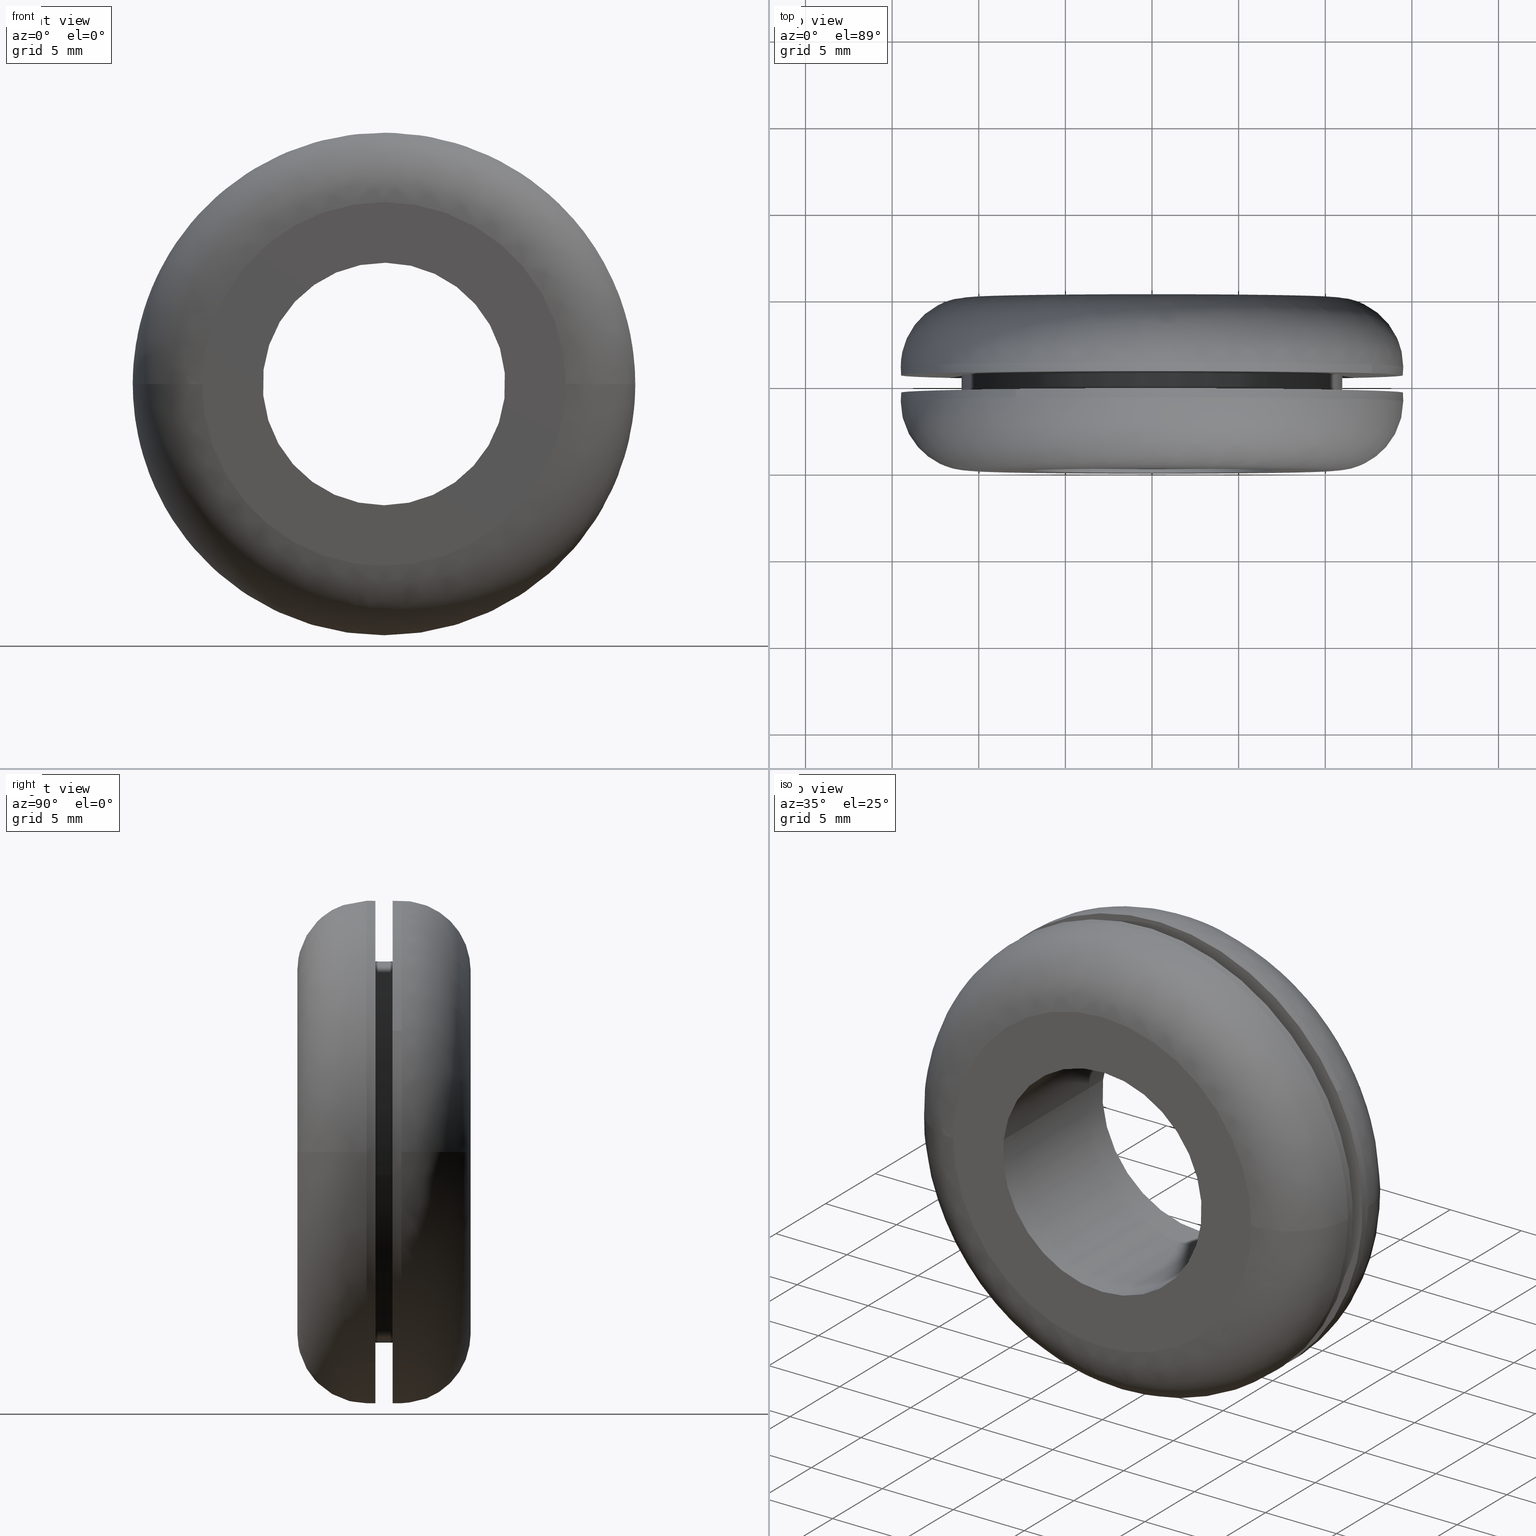
[diagram: canonical four-view strip — front | top / right | iso, engineering-drawing reading convention]
A machine part, canonical four-view strip (front | top / right | iso — engineering-drawing reading convention). The complete STEP part file that produces these views, byte-faithful:
ISO-10303-21;
HEADER;

FILE_DESCRIPTION( (''), '2;1');
FILE_NAME ('PC50.12492.TM_B_14_1_CRUL_4527.stp','2019-12-19T13:43:06',(''),(''),'spGate 15.6.1','','');

FILE_SCHEMA (('AUTOMOTIVE_DESIGN'));
ENDSEC;

DATA;
#10=(GEOMETRIC_REPRESENTATION_CONTEXT(3) GLOBAL_UNCERTAINTY_ASSIGNED_CONTEXT((#11)) GLOBAL_UNIT_ASSIGNED_CONTEXT((#12,#13,#14)) REPRESENTATION_CONTEXT('ID1','3D'));
#11=UNCERTAINTY_MEASURE_WITH_UNIT(LENGTH_MEASURE(0.01),#15,'DISTANCE_ACCURACY_VALUE','Maximum model space distance between geometric entities at asserted connectivities');
#12=(NAMED_UNIT(*) SI_UNIT($,.STERADIAN.) SOLID_ANGLE_UNIT());
#13=(CONVERSION_BASED_UNIT('DEGREE',#16) NAMED_UNIT(#17) PLANE_ANGLE_UNIT());
#14=(LENGTH_UNIT() NAMED_UNIT(*) SI_UNIT(.MILLI.,.METRE.));
#15=(LENGTH_UNIT() NAMED_UNIT(*) SI_UNIT(.MILLI.,.METRE.));
#16=PLANE_ANGLE_MEASURE_WITH_UNIT(PLANE_ANGLE_MEASURE(0.01745329252),#18);
#17=DIMENSIONAL_EXPONENTS(0.0,0.0,0.0,0.0,0.0,0.0,0.0);
#18=(NAMED_UNIT(*) PLANE_ANGLE_UNIT() SI_UNIT($,.RADIAN.));
#19=MANIFOLD_SOLID_BREP('TM_B_14_1',#31);
#20=ADVANCED_BREP_SHAPE_REPRESENTATION('',(#19),#10);
#21=APPLICATION_CONTEXT('');
#22=APPLICATION_PROTOCOL_DEFINITION('International Standard','automotive_design',1999,#21);
#23=PRODUCT_DEFINITION_CONTEXT('',#21,'design');
#24=PRODUCT_CONTEXT('',#21,'mechanical');
#25=PRODUCT('','','',(#24));
#26=PRODUCT_DEFINITION_FORMATION_WITH_SPECIFIED_SOURCE('','',#25,.NOT_KNOWN.);
#27=PRODUCT_RELATED_PRODUCT_CATEGORY('tool','tool',(#25));
#28=PRODUCT_DEFINITION('','',#26,#23);
#29=PRODUCT_DEFINITION_SHAPE('','',#28);
#30=SHAPE_DEFINITION_REPRESENTATION(#29,#20);
#31=CLOSED_SHELL('',(#40,#41,#42,#43,#44,#45,#46,#47,#48,#49,#50,#51,#52,#53,#54,#55));
#32=COLOUR_RGB('',0.00000000000E+000,0.00000000000E+000,0.00000000000E+000);
#33=FILL_AREA_STYLE_COLOUR('',#32);
#34=FILL_AREA_STYLE('',(#33));
#35=SURFACE_STYLE_FILL_AREA(#34);
#36=SURFACE_SIDE_STYLE('',(#35));
#37=SURFACE_STYLE_USAGE(.BOTH.,#36);
#38=PRESENTATION_STYLE_ASSIGNMENT((#37));
#39=STYLED_ITEM('',(#38),#19);
#40=ADVANCED_FACE('',(#57,#58),#56,.F.);
#41=ADVANCED_FACE('',(#68,#69),#67,.F.);
#42=ADVANCED_FACE('',(#79,#80),#78,.F.);
#43=ADVANCED_FACE('',(#90,#91),#89,.F.);
#44=ADVANCED_FACE('',(#101),#100,.T.);
#45=ADVANCED_FACE('',(#111),#110,.T.);
#46=ADVANCED_FACE('',(#121),#120,.T.);
#47=ADVANCED_FACE('',(#131),#130,.T.);
#48=ADVANCED_FACE('',(#141),#140,.T.);
#49=ADVANCED_FACE('',(#151),#150,.T.);
#50=ADVANCED_FACE('',(#161),#160,.T.);
#51=ADVANCED_FACE('',(#171),#170,.T.);
#52=ADVANCED_FACE('',(#181),#180,.F.);
#53=ADVANCED_FACE('',(#191),#190,.F.);
#54=ADVANCED_FACE('',(#201),#200,.T.);
#55=ADVANCED_FACE('',(#211),#210,.T.);
#56=PLANE('',#223);
#57=FACE_OUTER_BOUND('',#224,.T.);
#58=FACE_BOUND('',#225,.T.);
#59=COLOUR_RGB('',1.00000000000E+000,1.00000000000E+000,1.00000000000E+000);
#60=FILL_AREA_STYLE_COLOUR('',#59);
#61=FILL_AREA_STYLE('',(#60));
#62=SURFACE_STYLE_FILL_AREA(#61);
#63=SURFACE_SIDE_STYLE('',(#62));
#64=SURFACE_STYLE_USAGE(.BOTH.,#63);
#65=PRESENTATION_STYLE_ASSIGNMENT((#64));
#66=STYLED_ITEM('',(#65),#40);
#67=PLANE('',#229);
#68=FACE_OUTER_BOUND('',#230,.T.);
#69=FACE_BOUND('',#231,.T.);
#70=COLOUR_RGB('',1.00000000000E+000,1.00000000000E+000,1.00000000000E+000);
#71=FILL_AREA_STYLE_COLOUR('',#70);
#72=FILL_AREA_STYLE('',(#71));
#73=SURFACE_STYLE_FILL_AREA(#72);
#74=SURFACE_SIDE_STYLE('',(#73));
#75=SURFACE_STYLE_USAGE(.BOTH.,#74);
#76=PRESENTATION_STYLE_ASSIGNMENT((#75));
#77=STYLED_ITEM('',(#76),#41);
#78=PLANE('',#235);
#79=FACE_OUTER_BOUND('',#236,.T.);
#80=FACE_BOUND('',#237,.T.);
#81=COLOUR_RGB('',1.00000000000E+000,1.00000000000E+000,1.00000000000E+000);
#82=FILL_AREA_STYLE_COLOUR('',#81);
#83=FILL_AREA_STYLE('',(#82));
#84=SURFACE_STYLE_FILL_AREA(#83);
#85=SURFACE_SIDE_STYLE('',(#84));
#86=SURFACE_STYLE_USAGE(.BOTH.,#85);
#87=PRESENTATION_STYLE_ASSIGNMENT((#86));
#88=STYLED_ITEM('',(#87),#42);
#89=PLANE('',#241);
#90=FACE_OUTER_BOUND('',#242,.T.);
#91=FACE_BOUND('',#243,.T.);
#92=COLOUR_RGB('',1.00000000000E+000,1.00000000000E+000,1.00000000000E+000);
#93=FILL_AREA_STYLE_COLOUR('',#92);
#94=FILL_AREA_STYLE('',(#93));
#95=SURFACE_STYLE_FILL_AREA(#94);
#96=SURFACE_SIDE_STYLE('',(#95));
#97=SURFACE_STYLE_USAGE(.BOTH.,#96);
#98=PRESENTATION_STYLE_ASSIGNMENT((#97));
#99=STYLED_ITEM('',(#98),#43);
#100=CYLINDRICAL_SURFACE('',#247,1.10000000000E+001);
#101=FACE_OUTER_BOUND('',#248,.T.);
#102=COLOUR_RGB('',1.00000000000E+000,1.00000000000E+000,1.00000000000E+000);
#103=FILL_AREA_STYLE_COLOUR('',#102);
#104=FILL_AREA_STYLE('',(#103));
#105=SURFACE_STYLE_FILL_AREA(#104);
#106=SURFACE_SIDE_STYLE('',(#105));
#107=SURFACE_STYLE_USAGE(.BOTH.,#106);
#108=PRESENTATION_STYLE_ASSIGNMENT((#107));
#109=STYLED_ITEM('',(#108),#44);
#110=CYLINDRICAL_SURFACE('',#252,1.10000000000E+001);
#111=FACE_OUTER_BOUND('',#253,.T.);
#112=COLOUR_RGB('',1.00000000000E+000,1.00000000000E+000,1.00000000000E+000);
#113=FILL_AREA_STYLE_COLOUR('',#112);
#114=FILL_AREA_STYLE('',(#113));
#115=SURFACE_STYLE_FILL_AREA(#114);
#116=SURFACE_SIDE_STYLE('',(#115));
#117=SURFACE_STYLE_USAGE(.BOTH.,#116);
#118=PRESENTATION_STYLE_ASSIGNMENT((#117));
#119=STYLED_ITEM('',(#118),#45);
#120=CYLINDRICAL_SURFACE('',#257,1.45000000000E+001);
#121=FACE_OUTER_BOUND('',#258,.T.);
#122=COLOUR_RGB('',1.00000000000E+000,1.00000000000E+000,1.00000000000E+000);
#123=FILL_AREA_STYLE_COLOUR('',#122);
#124=FILL_AREA_STYLE('',(#123));
#125=SURFACE_STYLE_FILL_AREA(#124);
#126=SURFACE_SIDE_STYLE('',(#125));
#127=SURFACE_STYLE_USAGE(.BOTH.,#126);
#128=PRESENTATION_STYLE_ASSIGNMENT((#127));
#129=STYLED_ITEM('',(#128),#46);
#130=CYLINDRICAL_SURFACE('',#262,1.45000000000E+001);
#131=FACE_OUTER_BOUND('',#263,.T.);
#132=COLOUR_RGB('',1.00000000000E+000,1.00000000000E+000,1.00000000000E+000);
#133=FILL_AREA_STYLE_COLOUR('',#132);
#134=FILL_AREA_STYLE('',(#133));
#135=SURFACE_STYLE_FILL_AREA(#134);
#136=SURFACE_SIDE_STYLE('',(#135));
#137=SURFACE_STYLE_USAGE(.BOTH.,#136);
#138=PRESENTATION_STYLE_ASSIGNMENT((#137));
#139=STYLED_ITEM('',(#138),#47);
#140=( BOUNDED_SURFACE() B_SPLINE_SURFACE( 2,2,((#264,#265,#266,#267,#268),(#269,#270,#271,#272,#273),(#274,#275,#276,#277,#278),(#279,#280,#281,#282,#283),(#284,#285,#286,#287,#288)), .UNSPECIFIED.,.F.,.F.,.F.) B_SPLINE_SURFACE_WITH_KNOTS((3,2,3),(3,2,3),(0.00000000000E+000,5.00000000000E-001,1.00000000000E+000),(0.00000000000E+000,5.00000000000E-001,1.00000000000E+000), .UNSPECIFIED. ) GEOMETRIC_REPRESENTATION_ITEM() RATIONAL_B_SPLINE_SURFACE(((1.00000000000E+000,7.07106781004E-001,1.00000000000E+000,7.07106781004E-001,1.00000000000E+000),(7.07106781187E-001,4.99999999871E-001,7.07106781187E-001,4.99999999871E-001,7.07106781187E-001),(1.00000000000E+000,7.07106781004E-001,1.00000000000E+000,7.07106781004E-001,1.00000000000E+000),(7.07106781187E-001,4.99999999871E-001,7.07106781187E-001,4.99999999871E-001,7.07106781187E-001),(1.00000000000E+000,7.07106781004E-001,1.00000000000E+000,7.07106781004E-001,1.00000000000E+000))) REPRESENTATION_ITEM('') SURFACE() );
#141=FACE_OUTER_BOUND('',#289,.T.);
#142=COLOUR_RGB('',1.00000000000E+000,1.00000000000E+000,1.00000000000E+000);
#143=FILL_AREA_STYLE_COLOUR('',#142);
#144=FILL_AREA_STYLE('',(#143));
#145=SURFACE_STYLE_FILL_AREA(#144);
#146=SURFACE_SIDE_STYLE('',(#145));
#147=SURFACE_STYLE_USAGE(.BOTH.,#146);
#148=PRESENTATION_STYLE_ASSIGNMENT((#147));
#149=STYLED_ITEM('',(#148),#48);
#150=( BOUNDED_SURFACE() B_SPLINE_SURFACE( 2,2,((#290,#291,#292,#293,#294),(#295,#296,#297,#298,#299),(#300,#301,#302,#303,#304),(#305,#306,#307,#308,#309),(#310,#311,#312,#313,#314)), .UNSPECIFIED.,.F.,.F.,.F.) B_SPLINE_SURFACE_WITH_KNOTS((3,2,3),(3,2,3),(0.00000000000E+000,5.00000000000E-001,1.00000000000E+000),(0.00000000000E+000,5.00000000000E-001,1.00000000000E+000), .UNSPECIFIED. ) GEOMETRIC_REPRESENTATION_ITEM() RATIONAL_B_SPLINE_SURFACE(((1.00000000000E+000,7.07106781004E-001,1.00000000000E+000,7.07106781004E-001,1.00000000000E+000),(7.07106781187E-001,4.99999999871E-001,7.07106781187E-001,4.99999999871E-001,7.07106781187E-001),(1.00000000000E+000,7.07106781004E-001,1.00000000000E+000,7.07106781004E-001,1.00000000000E+000),(7.07106781187E-001,4.99999999871E-001,7.07106781187E-001,4.99999999871E-001,7.07106781187E-001),(1.00000000000E+000,7.07106781004E-001,1.00000000000E+000,7.07106781004E-001,1.00000000000E+000))) REPRESENTATION_ITEM('') SURFACE() );
#151=FACE_OUTER_BOUND('',#315,.T.);
#152=COLOUR_RGB('',1.00000000000E+000,1.00000000000E+000,1.00000000000E+000);
#153=FILL_AREA_STYLE_COLOUR('',#152);
#154=FILL_AREA_STYLE('',(#153));
#155=SURFACE_STYLE_FILL_AREA(#154);
#156=SURFACE_SIDE_STYLE('',(#155));
#157=SURFACE_STYLE_USAGE(.BOTH.,#156);
#158=PRESENTATION_STYLE_ASSIGNMENT((#157));
#159=STYLED_ITEM('',(#158),#49);
#160=( BOUNDED_SURFACE() B_SPLINE_SURFACE( 2,2,((#316,#317,#318,#319,#320),(#321,#322,#323,#324,#325),(#326,#327,#328,#329,#330),(#331,#332,#333,#334,#335),(#336,#337,#338,#339,#340)), .UNSPECIFIED.,.F.,.F.,.F.) B_SPLINE_SURFACE_WITH_KNOTS((3,2,3),(3,2,3),(-1.64636424835E-006,1.04719700241E+000,1.57079636874E+000),(0.00000000000E+000,1.57079632679E+000,3.14159265359E+000), .UNSPECIFIED. ) GEOMETRIC_REPRESENTATION_ITEM() RATIONAL_B_SPLINE_SURFACE(((1.00000000000E+000,7.07106781187E-001,1.00000000000E+000,7.07106781187E-001,1.00000000000E+000),(8.66025129390E-001,6.12372241670E-001,8.66025129390E-001,6.12372241670E-001,8.66025129390E-001),(1.00000000000E+000,7.07106781187E-001,1.00000000000E+000,7.07106781187E-001,1.00000000000E+000),(9.33012559328E-001,6.59739507633E-001,9.33012559328E-001,6.59739507633E-001,9.33012559328E-001),(9.33012564695E-001,6.59739511428E-001,9.33012564695E-001,6.59739511428E-001,9.33012564695E-001))) REPRESENTATION_ITEM('') SURFACE() );
#161=FACE_OUTER_BOUND('',#341,.T.);
#162=COLOUR_RGB('',1.00000000000E+000,1.00000000000E+000,1.00000000000E+000);
#163=FILL_AREA_STYLE_COLOUR('',#162);
#164=FILL_AREA_STYLE('',(#163));
#165=SURFACE_STYLE_FILL_AREA(#164);
#166=SURFACE_SIDE_STYLE('',(#165));
#167=SURFACE_STYLE_USAGE(.BOTH.,#166);
#168=PRESENTATION_STYLE_ASSIGNMENT((#167));
#169=STYLED_ITEM('',(#168),#50);
#170=( BOUNDED_SURFACE() B_SPLINE_SURFACE( 2,2,((#342,#343,#344,#345,#346),(#347,#348,#349,#350,#351),(#352,#353,#354,#355,#356),(#357,#358,#359,#360,#361),(#362,#363,#364,#365,#366)), .UNSPECIFIED.,.F.,.F.,.F.) B_SPLINE_SURFACE_WITH_KNOTS((3,2,3),(3,2,3),(-1.64636424835E-006,1.04719700241E+000,1.57079687995E+000),(3.14159265359E+000,4.71238898038E+000,6.28318530718E+000), .UNSPECIFIED. ) GEOMETRIC_REPRESENTATION_ITEM() RATIONAL_B_SPLINE_SURFACE(((1.00000000000E+000,7.07106781187E-001,1.00000000000E+000,7.07106781187E-001,1.00000000000E+000),(8.66025129390E-001,6.12372241670E-001,8.66025129390E-001,6.12372241670E-001,8.66025129390E-001),(1.00000000000E+000,7.07106781187E-001,1.00000000000E+000,7.07106781187E-001,1.00000000000E+000),(9.33012493926E-001,6.59739461387E-001,9.33012493926E-001,6.59739461387E-001,9.33012493926E-001),(9.33012564695E-001,6.59739511428E-001,9.33012564695E-001,6.59739511428E-001,9.33012564695E-001))) REPRESENTATION_ITEM('') SURFACE() );
#171=FACE_OUTER_BOUND('',#367,.T.);
#172=COLOUR_RGB('',1.00000000000E+000,1.00000000000E+000,1.00000000000E+000);
#173=FILL_AREA_STYLE_COLOUR('',#172);
#174=FILL_AREA_STYLE('',(#173));
#175=SURFACE_STYLE_FILL_AREA(#174);
#176=SURFACE_SIDE_STYLE('',(#175));
#177=SURFACE_STYLE_USAGE(.BOTH.,#176);
#178=PRESENTATION_STYLE_ASSIGNMENT((#177));
#179=STYLED_ITEM('',(#178),#51);
#180=CYLINDRICAL_SURFACE('',#371,7.00000000000E+000);
#181=FACE_OUTER_BOUND('',#372,.T.);
#182=COLOUR_RGB('',1.00000000000E+000,1.00000000000E+000,1.00000000000E+000);
#183=FILL_AREA_STYLE_COLOUR('',#182);
#184=FILL_AREA_STYLE('',(#183));
#185=SURFACE_STYLE_FILL_AREA(#184);
#186=SURFACE_SIDE_STYLE('',(#185));
#187=SURFACE_STYLE_USAGE(.BOTH.,#186);
#188=PRESENTATION_STYLE_ASSIGNMENT((#187));
#189=STYLED_ITEM('',(#188),#52);
#190=CYLINDRICAL_SURFACE('',#376,7.00000000000E+000);
#191=FACE_OUTER_BOUND('',#377,.T.);
#192=COLOUR_RGB('',1.00000000000E+000,1.00000000000E+000,1.00000000000E+000);
#193=FILL_AREA_STYLE_COLOUR('',#192);
#194=FILL_AREA_STYLE('',(#193));
#195=SURFACE_STYLE_FILL_AREA(#194);
#196=SURFACE_SIDE_STYLE('',(#195));
#197=SURFACE_STYLE_USAGE(.BOTH.,#196);
#198=PRESENTATION_STYLE_ASSIGNMENT((#197));
#199=STYLED_ITEM('',(#198),#53);
#200=CYLINDRICAL_SURFACE('',#381,1.45000000000E+001);
#201=FACE_OUTER_BOUND('',#382,.T.);
#202=COLOUR_RGB('',1.00000000000E+000,1.00000000000E+000,1.00000000000E+000);
#203=FILL_AREA_STYLE_COLOUR('',#202);
#204=FILL_AREA_STYLE('',(#203));
#205=SURFACE_STYLE_FILL_AREA(#204);
#206=SURFACE_SIDE_STYLE('',(#205));
#207=SURFACE_STYLE_USAGE(.BOTH.,#206);
#208=PRESENTATION_STYLE_ASSIGNMENT((#207));
#209=STYLED_ITEM('',(#208),#54);
#210=CYLINDRICAL_SURFACE('',#386,1.45000000000E+001);
#211=FACE_OUTER_BOUND('',#387,.T.);
#212=COLOUR_RGB('',1.00000000000E+000,1.00000000000E+000,1.00000000000E+000);
#213=FILL_AREA_STYLE_COLOUR('',#212);
#214=FILL_AREA_STYLE('',(#213));
#215=SURFACE_STYLE_FILL_AREA(#214);
#216=SURFACE_SIDE_STYLE('',(#215));
#217=SURFACE_STYLE_USAGE(.BOTH.,#216);
#218=PRESENTATION_STYLE_ASSIGNMENT((#217));
#219=STYLED_ITEM('',(#218),#55);
#220=CARTESIAN_POINT('',(-3.01376840517E+001,4.50000000000E+000,3.33500000000E+001));
#221=DIRECTION('',(0.00000000000E+000,-1.00000000000E+000,0.00000000000E+000));
#222=DIRECTION('',(0.00000000000E+000,0.00000000000E+000,-1.00000000000E+000));
#223=AXIS2_PLACEMENT_3D('',#220,#221,#222);
#224=EDGE_LOOP('',(#388,#389,#390));
#225=EDGE_LOOP('',(#391,#392,#393));
#226=CARTESIAN_POINT('',(-3.01376860484E+001,5.50000000000E+000,-1.88500029213E+001));
#227=DIRECTION('',(0.00000000000E+000,1.00000000000E+000,0.00000000000E+000));
#228=DIRECTION('',(0.00000000000E+000,0.00000000000E+000,1.00000000000E+000));
#229=AXIS2_PLACEMENT_3D('',#226,#227,#228);
#230=EDGE_LOOP('',(#394,#395,#396));
#231=EDGE_LOOP('',(#397,#398,#399));
#232=CARTESIAN_POINT('',(-2.18238401762E+001,1.00000000000E+001,2.41500000005E+001));
#233=DIRECTION('',(0.00000000000E+000,-1.00000000000E+000,-0.00000000000E+000));
#234=DIRECTION('',(-4.61433325716E-016,0.00000000000E+000,-1.00000000000E+000));
#235=AXIS2_PLACEMENT_3D('',#232,#233,#234);
#236=EDGE_LOOP('',(#400,#401,#402));
#237=EDGE_LOOP('',(#403,#404,#405));
#238=CARTESIAN_POINT('',(-2.18238401754E+001,-1.60729600000E-015,-2.41500000000E+001));
#239=DIRECTION('',(0.00000000000E+000,1.00000000000E+000,0.00000000000E+000));
#240=DIRECTION('',(0.00000000000E+000,0.00000000000E+000,1.00000000000E+000));
#241=AXIS2_PLACEMENT_3D('',#238,#239,#240);
#242=EDGE_LOOP('',(#406,#407,#408));
#243=EDGE_LOOP('',(#409,#410,#411));
#244=CARTESIAN_POINT('',(-3.79912734607E-016,5.52500000000E+000,2.05053560369E-016));
#245=DIRECTION('',(-1.42013378390E-016,1.00000000000E+000,-1.19474352523E-015));
#246=DIRECTION('',(-9.93009526364E-001,-4.93038065763E-032,1.18034234657E-001));
#247=AXIS2_PLACEMENT_3D('',#244,#245,#246);
#248=EDGE_LOOP('',(#412,#413,#414,#415));
#249=CARTESIAN_POINT('',(-3.79912734607E-016,5.52500000000E+000,2.05053560369E-016));
#250=DIRECTION('',(-1.42013378390E-016,1.00000000000E+000,-1.19474352523E-015));
#251=DIRECTION('',(-9.93009526364E-001,-4.93038065763E-032,1.18034234657E-001));
#252=AXIS2_PLACEMENT_3D('',#249,#250,#251);
#253=EDGE_LOOP('',(#416,#417,#418,#419,#420,#421));
#254=CARTESIAN_POINT('',(-1.72289254367E-015,4.51250000000E+000,-1.88528948862E-015));
#255=DIRECTION('',(-6.41828660824E-016,1.00000000000E+000,-4.14734654964E-016));
#256=DIRECTION('',(-5.42728861529E-001,4.93038065763E-032,8.39907960948E-001));
#257=AXIS2_PLACEMENT_3D('',#254,#255,#256);
#258=EDGE_LOOP('',(#422,#423,#424,#425,#426,#427,#428));
#259=CARTESIAN_POINT('',(-1.72289254367E-015,4.51250000000E+000,-1.88528948862E-015));
#260=DIRECTION('',(-6.41828660824E-016,1.00000000000E+000,-4.14734654964E-016));
#261=DIRECTION('',(-5.42728861529E-001,4.93038065763E-032,8.39907960948E-001));
#262=AXIS2_PLACEMENT_3D('',#259,#260,#261);
#263=EDGE_LOOP('',(#429,#430,#431,#432,#433,#434,#435,#436));
#264=CARTESIAN_POINT('',(-6.50000000002E+000,5.99999999588E+000,4.28656486427E-013));
#265=CARTESIAN_POINT('',(-6.49999999590E+000,9.99999999794E+000,3.94524883925E-013));
#266=CARTESIAN_POINT('',(-1.04999999980E+001,1.00000000000E+001,3.94035041366E-013));
#267=CARTESIAN_POINT('',(-1.45000000000E+001,1.00000000021E+001,3.93545198807E-013));
#268=CARTESIAN_POINT('',(-1.45000000000E+001,6.00000000001E+000,4.27676801308E-013));
#269=CARTESIAN_POINT('',(-6.50000000002E+000,5.99999999588E+000,-6.50000000001E+000));
#270=CARTESIAN_POINT('',(-6.49999999590E+000,9.99999999794E+000,-6.49999999589E+000));
#271=CARTESIAN_POINT('',(-1.04999999980E+001,1.00000000000E+001,-1.04999999980E+001));
#272=CARTESIAN_POINT('',(-1.45000000000E+001,1.00000000021E+001,-1.45000000000E+001));
#273=CARTESIAN_POINT('',(-1.45000000000E+001,6.00000000001E+000,-1.45000000000E+001));
#274=CARTESIAN_POINT('',(-1.21010329853E-011,5.99999999588E+000,-6.50000000001E+000));
#275=CARTESIAN_POINT('',(-1.12726240502E-011,9.99999999794E+000,-6.49999999589E+000));
#276=CARTESIAN_POINT('',(-1.12723791366E-011,1.00000000000E+001,-1.04999999980E+001));
#277=CARTESIAN_POINT('',(-1.12721342230E-011,1.00000000021E+001,-1.45000000000E+001));
#278=CARTESIAN_POINT('',(-1.21005431581E-011,6.00000000000E+000,-1.45000000000E+001));
#279=CARTESIAN_POINT('',(6.50000000000E+000,5.99999999588E+000,-6.50000000001E+000));
#280=CARTESIAN_POINT('',(6.49999999588E+000,9.99999999794E+000,-6.49999999589E+000));
#281=CARTESIAN_POINT('',(1.04999999979E+001,1.00000000000E+001,-1.04999999980E+001));
#282=CARTESIAN_POINT('',(1.45000000000E+001,1.00000000021E+001,-1.45000000000E+001));
#283=CARTESIAN_POINT('',(1.45000000000E+001,6.00000000000E+000,-1.45000000000E+001));
#284=CARTESIAN_POINT('',(6.50000000000E+000,5.99999999588E+000,4.29452454267E-013));
#285=CARTESIAN_POINT('',(6.49999999588E+000,9.99999999794E+000,3.95320851765E-013));
#286=CARTESIAN_POINT('',(1.04999999979E+001,1.00000000000E+001,3.95320835570E-013));
#287=CARTESIAN_POINT('',(1.45000000000E+001,1.00000000021E+001,3.95320819374E-013));
#288=CARTESIAN_POINT('',(1.45000000000E+001,6.00000000000E+000,4.29452421876E-013));
#289=EDGE_LOOP('',(#437,#438,#439,#440,#441,#442,#443,#444));
#290=CARTESIAN_POINT('',(6.50000000000E+000,5.99999999588E+000,4.29452454267E-013));
#291=CARTESIAN_POINT('',(6.49999999588E+000,9.99999999794E+000,3.95320851765E-013));
#292=CARTESIAN_POINT('',(1.04999999979E+001,1.00000000000E+001,3.95320835570E-013));
#293=CARTESIAN_POINT('',(1.45000000000E+001,1.00000000021E+001,3.95320819374E-013));
#294=CARTESIAN_POINT('',(1.45000000000E+001,6.00000000000E+000,4.29452421876E-013));
#295=CARTESIAN_POINT('',(6.50000000000E+000,5.99999999588E+000,6.50000000001E+000));
#296=CARTESIAN_POINT('',(6.49999999588E+000,9.99999999794E+000,6.49999999589E+000));
#297=CARTESIAN_POINT('',(1.04999999979E+001,1.00000000000E+001,1.04999999980E+001));
#298=CARTESIAN_POINT('',(1.45000000000E+001,1.00000000021E+001,1.45000000000E+001));
#299=CARTESIAN_POINT('',(1.45000000000E+001,6.00000000000E+000,1.45000000000E+001));
#300=CARTESIAN_POINT('',(-1.21010329328E-011,5.99999999588E+000,6.50000000001E+000));
#301=CARTESIAN_POINT('',(-1.12726239976E-011,9.99999999794E+000,6.49999999589E+000));
#302=CARTESIAN_POINT('',(-1.12723790516E-011,1.00000000000E+001,1.04999999980E+001));
#303=CARTESIAN_POINT('',(-1.12721341057E-011,1.00000000021E+001,1.45000000000E+001));
#304=CARTESIAN_POINT('',(-1.21005430408E-011,6.00000000000E+000,1.45000000000E+001));
#305=CARTESIAN_POINT('',(-6.50000000002E+000,5.99999999588E+000,6.50000000001E+000));
#306=CARTESIAN_POINT('',(-6.49999999590E+000,9.99999999794E+000,6.49999999589E+000));
#307=CARTESIAN_POINT('',(-1.04999999980E+001,1.00000000000E+001,1.04999999980E+001));
#308=CARTESIAN_POINT('',(-1.45000000000E+001,1.00000000021E+001,1.45000000000E+001));
#309=CARTESIAN_POINT('',(-1.45000000000E+001,6.00000000001E+000,1.45000000000E+001));
#310=CARTESIAN_POINT('',(-6.50000000002E+000,5.99999999588E+000,4.30248527266E-013));
#311=CARTESIAN_POINT('',(-6.49999999590E+000,9.99999999794E+000,3.96116924763E-013));
#312=CARTESIAN_POINT('',(-1.04999999980E+001,1.00000000000E+001,3.96606799644E-013));
#313=CARTESIAN_POINT('',(-1.45000000000E+001,1.00000000021E+001,3.97096674524E-013));
#314=CARTESIAN_POINT('',(-1.45000000000E+001,6.00000000001E+000,4.31228277026E-013));
#315=EDGE_LOOP('',(#445,#446,#447,#448,#449,#450));
#316=CARTESIAN_POINT('',(-1.45000000000E+001,4.00000658546E+000,-1.61613624794E-013));
#317=CARTESIAN_POINT('',(-1.45000000000E+001,4.00000658546E+000,1.45000000000E+001));
#318=CARTESIAN_POINT('',(1.22822589802E-012,4.00000658546E+000,1.45000000000E+001));
#319=CARTESIAN_POINT('',(1.45000000000E+001,4.00000658545E+000,1.45000000000E+001));
#320=CARTESIAN_POINT('',(1.45000000000E+001,4.00000658545E+000,-1.65164983220E-013));
#321=CARTESIAN_POINT('',(-1.45000038021E+001,1.69060258183E+000,-1.48773810327E-013));
#322=CARTESIAN_POINT('',(-1.45000038021E+001,1.69060258183E+000,1.45000038021E+001));
#323=CARTESIAN_POINT('',(9.75280424970E-013,1.69060258183E+000,1.45000038021E+001));
#324=CARTESIAN_POINT('',(1.45000038021E+001,1.69060258183E+000,1.45000038021E+001));
#325=CARTESIAN_POINT('',(1.45000038021E+001,1.69060258183E+000,-1.52325169684E-013));
#326=CARTESIAN_POINT('',(-1.25000019011E+001,5.35899482439E-001,-1.42598818727E-013));
#327=CARTESIAN_POINT('',(-1.25000019011E+001,5.35899482439E-001,1.25000019011E+001));
#328=CARTESIAN_POINT('',(8.48562646491E-013,5.35899482438E-001,1.25000019011E+001));
#329=CARTESIAN_POINT('',(1.25000019011E+001,5.35899482436E-001,1.25000019011E+001));
#330=CARTESIAN_POINT('',(1.25000019011E+001,5.35899482436E-001,-1.45660335077E-013));
#331=CARTESIAN_POINT('',(-1.15717978664E+001,-4.60164820877E-008,-1.39732995393E-013));
#332=CARTESIAN_POINT('',(-1.15717978664E+001,-4.60164178441E-008,1.15717978664E+001));
#333=CARTESIAN_POINT('',(7.89752725768E-013,-4.60176851106E-008,1.15717978664E+001));
#334=CARTESIAN_POINT('',(1.15717978664E+001,-4.60189525921E-008,1.15717978664E+001));
#335=CARTESIAN_POINT('',(1.15717978664E+001,-4.60190168249E-008,-1.42567174831E-013));
#336=CARTESIAN_POINT('',(-1.04999998283E+001,6.78047944896E-015,-1.39864248718E-013));
#337=CARTESIAN_POINT('',(-1.04999998283E+001,6.51516620125E-014,1.04999998283E+001));
#338=CARTESIAN_POINT('',(7.89621477739E-013,-1.08474562716E-012,1.04999998283E+001));
#339=CARTESIAN_POINT('',(1.04999998283E+001,-2.23471671555E-012,1.04999998283E+001));
#340=CARTESIAN_POINT('',(1.04999998283E+001,-2.29306371824E-012,-1.42435922019E-013));
#341=EDGE_LOOP('',(#451,#452,#453,#454,#455,#456,#457,#458));
#342=CARTESIAN_POINT('',(1.45000000000E+001,4.00000658545E+000,-1.65164983220E-013));
#343=CARTESIAN_POINT('',(1.45000000000E+001,4.00000658545E+000,-1.45000000000E+001));
#344=CARTESIAN_POINT('',(1.22467453960E-012,4.00000658546E+000,-1.45000000000E+001));
#345=CARTESIAN_POINT('',(-1.45000000000E+001,4.00000658546E+000,-1.45000000000E+001));
#346=CARTESIAN_POINT('',(-1.45000000000E+001,4.00000658546E+000,-1.61613624794E-013));
#347=CARTESIAN_POINT('',(1.45000038021E+001,1.69060258183E+000,-1.52325169684E-013));
#348=CARTESIAN_POINT('',(1.45000038021E+001,1.69060258183E+000,-1.45000038021E+001));
#349=CARTESIAN_POINT('',(9.71729065613E-013,1.69060258183E+000,-1.45000038021E+001));
#350=CARTESIAN_POINT('',(-1.45000038021E+001,1.69060258183E+000,-1.45000038021E+001));
#351=CARTESIAN_POINT('',(-1.45000038021E+001,1.69060258183E+000,-1.48773810327E-013));
#352=CARTESIAN_POINT('',(1.25000019011E+001,5.35899482436E-001,-1.45660335077E-013));
#353=CARTESIAN_POINT('',(1.25000019011E+001,5.35899482436E-001,-1.25000019011E+001));
#354=CARTESIAN_POINT('',(8.45501130141E-013,5.35899482438E-001,-1.25000019011E+001));
#355=CARTESIAN_POINT('',(-1.25000019011E+001,5.35899482439E-001,-1.25000019011E+001));
#356=CARTESIAN_POINT('',(-1.25000019011E+001,5.35899482439E-001,-1.42598818727E-013));
#357=CARTESIAN_POINT('',(1.15717968951E+001,-6.06805105451E-007,-1.42567171595E-013));
#358=CARTESIAN_POINT('',(1.15717968951E+001,-6.06805169878E-007,-1.15717968951E+001));
#359=CARTESIAN_POINT('',(7.86918485026E-013,-6.06803902428E-007,-1.15717968951E+001));
#360=CARTESIAN_POINT('',(-1.15717968951E+001,-6.06802635172E-007,-1.15717968951E+001));
#361=CARTESIAN_POINT('',(-1.15717968951E+001,-6.06802570713E-007,-1.39732992394E-013));
#362=CARTESIAN_POINT('',(1.04999977354E+001,-1.65568966527E-012,-1.42435921762E-013));
#363=CARTESIAN_POINT('',(1.04999977354E+001,-1.71410934743E-012,-1.04999977354E+001));
#364=CARTESIAN_POINT('',(7.87049804695E-013,-5.64163667467E-013,-1.04999977354E+001));
#365=CARTESIAN_POINT('',(-1.04999977354E+001,5.85695695004E-013,-1.04999977354E+001));
#366=CARTESIAN_POINT('',(-1.04999977354E+001,6.44154303115E-013,-1.39864248974E-013));
#367=EDGE_LOOP('',(#459,#460,#461,#462,#463,#464,#465));
#368=CARTESIAN_POINT('',(-4.08316032339E-015,1.02500000000E+001,-3.28285686673E-014));
#369=DIRECTION('',(-8.36062553645E-016,1.00000000000E+000,-5.95874113188E-015));
#370=DIRECTION('',(-9.93009526364E-001,-1.26882631386E-016,1.18034234657E-001));
#371=AXIS2_PLACEMENT_3D('',#368,#369,#370);
#372=EDGE_LOOP('',(#466,#467,#468,#469));
#373=CARTESIAN_POINT('',(-4.08316032339E-015,1.02500000000E+001,-3.28285686673E-014));
#374=DIRECTION('',(-8.36062553645E-016,1.00000000000E+000,-5.95874113188E-015));
#375=DIRECTION('',(-9.93009526364E-001,-1.26882631386E-016,1.18034234657E-001));
#376=AXIS2_PLACEMENT_3D('',#373,#374,#375);
#377=EDGE_LOOP('',(#470,#471,#472,#473,#474,#475));
#378=CARTESIAN_POINT('',(-1.02623754293E-015,6.01250000003E+000,3.46741052307E-015));
#379=DIRECTION('',(3.19754362181E-016,1.00000000000E+000,-3.24771086637E-016));
#380=DIRECTION('',(-8.74946427443E-001,1.22507368235E-016,-4.84219732254E-001));
#381=AXIS2_PLACEMENT_3D('',#378,#379,#380);
#382=EDGE_LOOP('',(#476,#477,#478,#479,#480,#481));
#383=CARTESIAN_POINT('',(-1.02623754293E-015,6.01250000003E+000,3.46741052307E-015));
#384=DIRECTION('',(3.19754362181E-016,1.00000000000E+000,-3.24771086637E-016));
#385=DIRECTION('',(-8.74946427443E-001,1.22507368235E-016,-4.84219732254E-001));
#386=AXIS2_PLACEMENT_3D('',#383,#384,#385);
#387=EDGE_LOOP('',(#482,#483,#484,#485,#486,#487,#488,#489));
#388=ORIENTED_EDGE('',*,*,#490,.F.);
#389=ORIENTED_EDGE('',*,*,#491,.F.);
#390=ORIENTED_EDGE('',*,*,#492,.F.);
#391=ORIENTED_EDGE('',*,*,#493,.T.);
#392=ORIENTED_EDGE('',*,*,#494,.T.);
#393=ORIENTED_EDGE('',*,*,#495,.T.);
#394=ORIENTED_EDGE('',*,*,#496,.T.);
#395=ORIENTED_EDGE('',*,*,#497,.T.);
#396=ORIENTED_EDGE('',*,*,#498,.T.);
#397=ORIENTED_EDGE('',*,*,#499,.F.);
#398=ORIENTED_EDGE('',*,*,#500,.F.);
#399=ORIENTED_EDGE('',*,*,#501,.F.);
#400=ORIENTED_EDGE('',*,*,#502,.F.);
#401=ORIENTED_EDGE('',*,*,#503,.F.);
#402=ORIENTED_EDGE('',*,*,#504,.F.);
#403=ORIENTED_EDGE('',*,*,#505,.T.);
#404=ORIENTED_EDGE('',*,*,#506,.T.);
#405=ORIENTED_EDGE('',*,*,#507,.T.);
#406=ORIENTED_EDGE('',*,*,#508,.T.);
#407=ORIENTED_EDGE('',*,*,#509,.T.);
#408=ORIENTED_EDGE('',*,*,#510,.T.);
#409=ORIENTED_EDGE('',*,*,#511,.F.);
#410=ORIENTED_EDGE('',*,*,#512,.F.);
#411=ORIENTED_EDGE('',*,*,#513,.F.);
#412=ORIENTED_EDGE('',*,*,#500,.T.);
#413=ORIENTED_EDGE('',*,*,#514,.F.);
#414=ORIENTED_EDGE('',*,*,#494,.F.);
#415=ORIENTED_EDGE('',*,*,#515,.T.);
#416=ORIENTED_EDGE('',*,*,#493,.F.);
#417=ORIENTED_EDGE('',*,*,#495,.F.);
#418=ORIENTED_EDGE('',*,*,#514,.T.);
#419=ORIENTED_EDGE('',*,*,#499,.T.);
#420=ORIENTED_EDGE('',*,*,#501,.T.);
#421=ORIENTED_EDGE('',*,*,#515,.F.);
#422=ORIENTED_EDGE('',*,*,#491,.T.);
#423=ORIENTED_EDGE('',*,*,#516,.F.);
#424=ORIENTED_EDGE('',*,*,#517,.F.);
#425=ORIENTED_EDGE('',*,*,#518,.F.);
#426=ORIENTED_EDGE('',*,*,#519,.F.);
#427=ORIENTED_EDGE('',*,*,#520,.F.);
#428=ORIENTED_EDGE('',*,*,#521,.T.);
#429=ORIENTED_EDGE('',*,*,#522,.F.);
#430=ORIENTED_EDGE('',*,*,#523,.F.);
#431=ORIENTED_EDGE('',*,*,#524,.F.);
#432=ORIENTED_EDGE('',*,*,#525,.F.);
#433=ORIENTED_EDGE('',*,*,#516,.T.);
#434=ORIENTED_EDGE('',*,*,#490,.T.);
#435=ORIENTED_EDGE('',*,*,#492,.T.);
#436=ORIENTED_EDGE('',*,*,#521,.F.);
#437=ORIENTED_EDGE('',*,*,#526,.F.);
#438=ORIENTED_EDGE('',*,*,#527,.F.);
#439=ORIENTED_EDGE('',*,*,#528,.F.);
#440=ORIENTED_EDGE('',*,*,#529,.F.);
#441=ORIENTED_EDGE('',*,*,#530,.F.);
#442=ORIENTED_EDGE('',*,*,#502,.T.);
#443=ORIENTED_EDGE('',*,*,#504,.T.);
#444=ORIENTED_EDGE('',*,*,#531,.T.);
#445=ORIENTED_EDGE('',*,*,#503,.T.);
#446=ORIENTED_EDGE('',*,*,#530,.T.);
#447=ORIENTED_EDGE('',*,*,#532,.F.);
#448=ORIENTED_EDGE('',*,*,#533,.F.);
#449=ORIENTED_EDGE('',*,*,#534,.F.);
#450=ORIENTED_EDGE('',*,*,#531,.F.);
#451=ORIENTED_EDGE('',*,*,#518,.T.);
#452=ORIENTED_EDGE('',*,*,#517,.T.);
#453=ORIENTED_EDGE('',*,*,#525,.T.);
#454=ORIENTED_EDGE('',*,*,#524,.T.);
#455=ORIENTED_EDGE('',*,*,#535,.T.);
#456=ORIENTED_EDGE('',*,*,#508,.F.);
#457=ORIENTED_EDGE('',*,*,#510,.F.);
#458=ORIENTED_EDGE('',*,*,#536,.F.);
#459=ORIENTED_EDGE('',*,*,#509,.F.);
#460=ORIENTED_EDGE('',*,*,#535,.F.);
#461=ORIENTED_EDGE('',*,*,#523,.T.);
#462=ORIENTED_EDGE('',*,*,#522,.T.);
#463=ORIENTED_EDGE('',*,*,#520,.T.);
#464=ORIENTED_EDGE('',*,*,#519,.T.);
#465=ORIENTED_EDGE('',*,*,#536,.T.);
#466=ORIENTED_EDGE('',*,*,#512,.T.);
#467=ORIENTED_EDGE('',*,*,#537,.T.);
#468=ORIENTED_EDGE('',*,*,#506,.F.);
#469=ORIENTED_EDGE('',*,*,#538,.F.);
#470=ORIENTED_EDGE('',*,*,#505,.F.);
#471=ORIENTED_EDGE('',*,*,#507,.F.);
#472=ORIENTED_EDGE('',*,*,#537,.F.);
#473=ORIENTED_EDGE('',*,*,#511,.T.);
#474=ORIENTED_EDGE('',*,*,#513,.T.);
#475=ORIENTED_EDGE('',*,*,#538,.T.);
#476=ORIENTED_EDGE('',*,*,#533,.T.);
#477=ORIENTED_EDGE('',*,*,#532,.T.);
#478=ORIENTED_EDGE('',*,*,#529,.T.);
#479=ORIENTED_EDGE('',*,*,#539,.F.);
#480=ORIENTED_EDGE('',*,*,#497,.F.);
#481=ORIENTED_EDGE('',*,*,#540,.T.);
#482=ORIENTED_EDGE('',*,*,#496,.F.);
#483=ORIENTED_EDGE('',*,*,#498,.F.);
#484=ORIENTED_EDGE('',*,*,#539,.T.);
#485=ORIENTED_EDGE('',*,*,#528,.T.);
#486=ORIENTED_EDGE('',*,*,#527,.T.);
#487=ORIENTED_EDGE('',*,*,#526,.T.);
#488=ORIENTED_EDGE('',*,*,#534,.T.);
#489=ORIENTED_EDGE('',*,*,#540,.F.);
#490=EDGE_CURVE('',#541,#542,#543,.T.);
#491=EDGE_CURVE('',#549,#541,#550,.T.);
#492=EDGE_CURVE('',#542,#549,#556,.T.);
#493=EDGE_CURVE('',#562,#563,#564,.T.);
#494=EDGE_CURVE('',#563,#570,#571,.T.);
#495=EDGE_CURVE('',#570,#562,#577,.T.);
#496=EDGE_CURVE('',#583,#584,#585,.T.);
#497=EDGE_CURVE('',#584,#591,#592,.T.);
#498=EDGE_CURVE('',#591,#583,#598,.T.);
#499=EDGE_CURVE('',#604,#605,#606,.T.);
#500=EDGE_CURVE('',#612,#604,#613,.T.);
#501=EDGE_CURVE('',#605,#612,#619,.T.);
#502=EDGE_CURVE('',#625,#626,#627,.T.);
#503=EDGE_CURVE('',#633,#625,#634,.T.);
#504=EDGE_CURVE('',#626,#633,#640,.T.);
#505=EDGE_CURVE('',#646,#647,#648,.T.);
#506=EDGE_CURVE('',#647,#654,#655,.T.);
#507=EDGE_CURVE('',#654,#646,#661,.T.);
#508=EDGE_CURVE('',#667,#668,#669,.T.);
#509=EDGE_CURVE('',#668,#675,#676,.T.);
#510=EDGE_CURVE('',#675,#667,#682,.T.);
#511=EDGE_CURVE('',#688,#689,#690,.T.);
#512=EDGE_CURVE('',#696,#688,#697,.T.);
#513=EDGE_CURVE('',#689,#696,#703,.T.);
#514=EDGE_CURVE('',#570,#604,#709,.T.);
#515=EDGE_CURVE('',#563,#612,#715,.T.);
#516=EDGE_CURVE('',#721,#541,#722,.T.);
#517=EDGE_CURVE('',#728,#721,#729,.T.);
#518=EDGE_CURVE('',#735,#728,#736,.T.);
#519=EDGE_CURVE('',#742,#735,#743,.T.);
#520=EDGE_CURVE('',#749,#742,#750,.T.);
#521=EDGE_CURVE('',#749,#549,#756,.T.);
#522=EDGE_CURVE('',#762,#749,#763,.T.);
#523=EDGE_CURVE('',#769,#762,#770,.T.);
#524=EDGE_CURVE('',#776,#769,#777,.T.);
#525=EDGE_CURVE('',#721,#776,#783,.T.);
#526=EDGE_CURVE('',#789,#790,#791,.T.);
#527=EDGE_CURVE('',#797,#789,#798,.T.);
#528=EDGE_CURVE('',#804,#797,#805,.T.);
#529=EDGE_CURVE('',#811,#804,#812,.T.);
#530=EDGE_CURVE('',#625,#811,#818,.T.);
#531=EDGE_CURVE('',#633,#790,#824,.T.);
#532=EDGE_CURVE('',#830,#811,#831,.T.);
#533=EDGE_CURVE('',#837,#830,#838,.T.);
#534=EDGE_CURVE('',#790,#837,#844,.T.);
#535=EDGE_CURVE('',#769,#668,#850,.T.);
#536=EDGE_CURVE('',#735,#675,#856,.T.);
#537=EDGE_CURVE('',#688,#654,#862,.T.);
#538=EDGE_CURVE('',#696,#647,#868,.T.);
#539=EDGE_CURVE('',#591,#804,#874,.T.);
#540=EDGE_CURVE('',#584,#837,#880,.T.);
#541=VERTEX_POINT('',#886);
#542=VERTEX_POINT('',#887);
#543=CIRCLE('',#891,1.45000000000E+001);
#544=COLOUR_RGB('',1.00000000000E+000,1.00000000000E+000,1.00000000000E+000);
#545=DRAUGHTING_PRE_DEFINED_CURVE_FONT('continuous');
#546=CURVE_STYLE( '',#545, POSITIVE_LENGTH_MEASURE(1.00000000000E-006),#544);
#547=PRESENTATION_STYLE_ASSIGNMENT((#546));
#548=STYLED_ITEM('',(#547),#490);
#549=VERTEX_POINT('',#892);
#550=CIRCLE('',#896,1.45000000000E+001);
#551=COLOUR_RGB('',1.00000000000E+000,1.00000000000E+000,1.00000000000E+000);
#552=DRAUGHTING_PRE_DEFINED_CURVE_FONT('continuous');
#553=CURVE_STYLE( '',#552, POSITIVE_LENGTH_MEASURE(1.00000000000E-006),#551);
#554=PRESENTATION_STYLE_ASSIGNMENT((#553));
#555=STYLED_ITEM('',(#554),#491);
#556=CIRCLE('',#900,1.45000000000E+001);
#557=COLOUR_RGB('',1.00000000000E+000,1.00000000000E+000,1.00000000000E+000);
#558=DRAUGHTING_PRE_DEFINED_CURVE_FONT('continuous');
#559=CURVE_STYLE( '',#558, POSITIVE_LENGTH_MEASURE(1.00000000000E-006),#557);
#560=PRESENTATION_STYLE_ASSIGNMENT((#559));
#561=STYLED_ITEM('',(#560),#492);
#562=VERTEX_POINT('',#901);
#563=VERTEX_POINT('',#902);
#564=CIRCLE('',#906,1.10000000000E+001);
#565=COLOUR_RGB('',1.00000000000E+000,1.00000000000E+000,1.00000000000E+000);
#566=DRAUGHTING_PRE_DEFINED_CURVE_FONT('continuous');
#567=CURVE_STYLE( '',#566, POSITIVE_LENGTH_MEASURE(1.00000000000E-006),#565);
#568=PRESENTATION_STYLE_ASSIGNMENT((#567));
#569=STYLED_ITEM('',(#568),#493);
#570=VERTEX_POINT('',#907);
#571=CIRCLE('',#911,1.10000000000E+001);
#572=COLOUR_RGB('',1.00000000000E+000,1.00000000000E+000,1.00000000000E+000);
#573=DRAUGHTING_PRE_DEFINED_CURVE_FONT('continuous');
#574=CURVE_STYLE( '',#573, POSITIVE_LENGTH_MEASURE(1.00000000000E-006),#572);
#575=PRESENTATION_STYLE_ASSIGNMENT((#574));
#576=STYLED_ITEM('',(#575),#494);
#577=CIRCLE('',#915,1.10000000000E+001);
#578=COLOUR_RGB('',1.00000000000E+000,1.00000000000E+000,1.00000000000E+000);
#579=DRAUGHTING_PRE_DEFINED_CURVE_FONT('continuous');
#580=CURVE_STYLE( '',#579, POSITIVE_LENGTH_MEASURE(1.00000000000E-006),#578);
#581=PRESENTATION_STYLE_ASSIGNMENT((#580));
#582=STYLED_ITEM('',(#581),#495);
#583=VERTEX_POINT('',#916);
#584=VERTEX_POINT('',#917);
#585=CIRCLE('',#921,1.45000009607E+001);
#586=COLOUR_RGB('',1.00000000000E+000,1.00000000000E+000,1.00000000000E+000);
#587=DRAUGHTING_PRE_DEFINED_CURVE_FONT('continuous');
#588=CURVE_STYLE( '',#587, POSITIVE_LENGTH_MEASURE(1.00000000000E-006),#586);
#589=PRESENTATION_STYLE_ASSIGNMENT((#588));
#590=STYLED_ITEM('',(#589),#496);
#591=VERTEX_POINT('',#922);
#592=CIRCLE('',#926,1.45000009607E+001);
#593=COLOUR_RGB('',1.00000000000E+000,1.00000000000E+000,1.00000000000E+000);
#594=DRAUGHTING_PRE_DEFINED_CURVE_FONT('continuous');
#595=CURVE_STYLE( '',#594, POSITIVE_LENGTH_MEASURE(1.00000000000E-006),#593);
#596=PRESENTATION_STYLE_ASSIGNMENT((#595));
#597=STYLED_ITEM('',(#596),#497);
#598=CIRCLE('',#930,1.45000009607E+001);
#599=COLOUR_RGB('',1.00000000000E+000,1.00000000000E+000,1.00000000000E+000);
#600=DRAUGHTING_PRE_DEFINED_CURVE_FONT('continuous');
#601=CURVE_STYLE( '',#600, POSITIVE_LENGTH_MEASURE(1.00000000000E-006),#599);
#602=PRESENTATION_STYLE_ASSIGNMENT((#601));
#603=STYLED_ITEM('',(#602),#498);
#604=VERTEX_POINT('',#931);
#605=VERTEX_POINT('',#932);
#606=CIRCLE('',#936,1.10000000000E+001);
#607=COLOUR_RGB('',1.00000000000E+000,1.00000000000E+000,1.00000000000E+000);
#608=DRAUGHTING_PRE_DEFINED_CURVE_FONT('continuous');
#609=CURVE_STYLE( '',#608, POSITIVE_LENGTH_MEASURE(1.00000000000E-006),#607);
#610=PRESENTATION_STYLE_ASSIGNMENT((#609));
#611=STYLED_ITEM('',(#610),#499);
#612=VERTEX_POINT('',#937);
#613=CIRCLE('',#941,1.10000000000E+001);
#614=COLOUR_RGB('',1.00000000000E+000,1.00000000000E+000,1.00000000000E+000);
#615=DRAUGHTING_PRE_DEFINED_CURVE_FONT('continuous');
#616=CURVE_STYLE( '',#615, POSITIVE_LENGTH_MEASURE(1.00000000000E-006),#614);
#617=PRESENTATION_STYLE_ASSIGNMENT((#616));
#618=STYLED_ITEM('',(#617),#500);
#619=CIRCLE('',#945,1.10000000000E+001);
#620=COLOUR_RGB('',1.00000000000E+000,1.00000000000E+000,1.00000000000E+000);
#621=DRAUGHTING_PRE_DEFINED_CURVE_FONT('continuous');
#622=CURVE_STYLE( '',#621, POSITIVE_LENGTH_MEASURE(1.00000000000E-006),#620);
#623=PRESENTATION_STYLE_ASSIGNMENT((#622));
#624=STYLED_ITEM('',(#623),#501);
#625=VERTEX_POINT('',#946);
#626=VERTEX_POINT('',#947);
#627=CIRCLE('',#951,1.05000000004E+001);
#628=COLOUR_RGB('',1.00000000000E+000,1.00000000000E+000,1.00000000000E+000);
#629=DRAUGHTING_PRE_DEFINED_CURVE_FONT('continuous');
#630=CURVE_STYLE( '',#629, POSITIVE_LENGTH_MEASURE(1.00000000000E-006),#628);
#631=PRESENTATION_STYLE_ASSIGNMENT((#630));
#632=STYLED_ITEM('',(#631),#502);
#633=VERTEX_POINT('',#952);
#634=CIRCLE('',#956,1.05000000004E+001);
#635=COLOUR_RGB('',1.00000000000E+000,1.00000000000E+000,1.00000000000E+000);
#636=DRAUGHTING_PRE_DEFINED_CURVE_FONT('continuous');
#637=CURVE_STYLE( '',#636, POSITIVE_LENGTH_MEASURE(1.00000000000E-006),#635);
#638=PRESENTATION_STYLE_ASSIGNMENT((#637));
#639=STYLED_ITEM('',(#638),#503);
#640=CIRCLE('',#960,1.05000000004E+001);
#641=COLOUR_RGB('',1.00000000000E+000,1.00000000000E+000,1.00000000000E+000);
#642=DRAUGHTING_PRE_DEFINED_CURVE_FONT('continuous');
#643=CURVE_STYLE( '',#642, POSITIVE_LENGTH_MEASURE(1.00000000000E-006),#641);
#644=PRESENTATION_STYLE_ASSIGNMENT((#643));
#645=STYLED_ITEM('',(#644),#504);
#646=VERTEX_POINT('',#961);
#647=VERTEX_POINT('',#962);
#648=CIRCLE('',#966,6.99999999999E+000);
#649=COLOUR_RGB('',1.00000000000E+000,1.00000000000E+000,1.00000000000E+000);
#650=DRAUGHTING_PRE_DEFINED_CURVE_FONT('continuous');
#651=CURVE_STYLE( '',#650, POSITIVE_LENGTH_MEASURE(1.00000000000E-006),#649);
#652=PRESENTATION_STYLE_ASSIGNMENT((#651));
#653=STYLED_ITEM('',(#652),#505);
#654=VERTEX_POINT('',#967);
#655=CIRCLE('',#971,6.99999999999E+000);
#656=COLOUR_RGB('',1.00000000000E+000,1.00000000000E+000,1.00000000000E+000);
#657=DRAUGHTING_PRE_DEFINED_CURVE_FONT('continuous');
#658=CURVE_STYLE( '',#657, POSITIVE_LENGTH_MEASURE(1.00000000000E-006),#656);
#659=PRESENTATION_STYLE_ASSIGNMENT((#658));
#660=STYLED_ITEM('',(#659),#506);
#661=CIRCLE('',#975,6.99999999999E+000);
#662=COLOUR_RGB('',1.00000000000E+000,1.00000000000E+000,1.00000000000E+000);
#663=DRAUGHTING_PRE_DEFINED_CURVE_FONT('continuous');
#664=CURVE_STYLE( '',#663, POSITIVE_LENGTH_MEASURE(1.00000000000E-006),#662);
#665=PRESENTATION_STYLE_ASSIGNMENT((#664));
#666=STYLED_ITEM('',(#665),#507);
#667=VERTEX_POINT('',#976);
#668=VERTEX_POINT('',#977);
#669=CIRCLE('',#981,1.05000000000E+001);
#670=COLOUR_RGB('',1.00000000000E+000,1.00000000000E+000,1.00000000000E+000);
#671=DRAUGHTING_PRE_DEFINED_CURVE_FONT('continuous');
#672=CURVE_STYLE( '',#671, POSITIVE_LENGTH_MEASURE(1.00000000000E-006),#670);
#673=PRESENTATION_STYLE_ASSIGNMENT((#672));
#674=STYLED_ITEM('',(#673),#508);
#675=VERTEX_POINT('',#982);
#676=CIRCLE('',#986,1.05000000000E+001);
#677=COLOUR_RGB('',1.00000000000E+000,1.00000000000E+000,1.00000000000E+000);
#678=DRAUGHTING_PRE_DEFINED_CURVE_FONT('continuous');
#679=CURVE_STYLE( '',#678, POSITIVE_LENGTH_MEASURE(1.00000000000E-006),#677);
#680=PRESENTATION_STYLE_ASSIGNMENT((#679));
#681=STYLED_ITEM('',(#680),#509);
#682=CIRCLE('',#990,1.05000000000E+001);
#683=COLOUR_RGB('',1.00000000000E+000,1.00000000000E+000,1.00000000000E+000);
#684=DRAUGHTING_PRE_DEFINED_CURVE_FONT('continuous');
#685=CURVE_STYLE( '',#684, POSITIVE_LENGTH_MEASURE(1.00000000000E-006),#683);
#686=PRESENTATION_STYLE_ASSIGNMENT((#685));
#687=STYLED_ITEM('',(#686),#510);
#688=VERTEX_POINT('',#991);
#689=VERTEX_POINT('',#992);
#690=CIRCLE('',#996,6.99999999999E+000);
#691=COLOUR_RGB('',1.00000000000E+000,1.00000000000E+000,1.00000000000E+000);
#692=DRAUGHTING_PRE_DEFINED_CURVE_FONT('continuous');
#693=CURVE_STYLE( '',#692, POSITIVE_LENGTH_MEASURE(1.00000000000E-006),#691);
#694=PRESENTATION_STYLE_ASSIGNMENT((#693));
#695=STYLED_ITEM('',(#694),#511);
#696=VERTEX_POINT('',#997);
#697=CIRCLE('',#1001,6.99999999999E+000);
#698=COLOUR_RGB('',1.00000000000E+000,1.00000000000E+000,1.00000000000E+000);
#699=DRAUGHTING_PRE_DEFINED_CURVE_FONT('continuous');
#700=CURVE_STYLE( '',#699, POSITIVE_LENGTH_MEASURE(1.00000000000E-006),#698);
#701=PRESENTATION_STYLE_ASSIGNMENT((#700));
#702=STYLED_ITEM('',(#701),#512);
#703=CIRCLE('',#1005,6.99999999999E+000);
#704=COLOUR_RGB('',1.00000000000E+000,1.00000000000E+000,1.00000000000E+000);
#705=DRAUGHTING_PRE_DEFINED_CURVE_FONT('continuous');
#706=CURVE_STYLE( '',#705, POSITIVE_LENGTH_MEASURE(1.00000000000E-006),#704);
#707=PRESENTATION_STYLE_ASSIGNMENT((#706));
#708=STYLED_ITEM('',(#707),#513);
#709=(BOUNDED_CURVE() B_SPLINE_CURVE(1,(#1006,#1007),.UNSPECIFIED.,.F.,.F.) B_SPLINE_CURVE_WITH_KNOTS((2,2),(8.33333730703E-002,9.16666640476E-001),.UNSPECIFIED.) CURVE() GEOMETRIC_REPRESENTATION_ITEM() RATIONAL_B_SPLINE_CURVE((1.00000000000E+000,1.00000000000E+000)) REPRESENTATION_ITEM('') );
#710=COLOUR_RGB('',1.00000000000E+000,1.00000000000E+000,1.00000000000E+000);
#711=DRAUGHTING_PRE_DEFINED_CURVE_FONT('continuous');
#712=CURVE_STYLE( '',#711, POSITIVE_LENGTH_MEASURE(1.00000000000E-006),#710);
#713=PRESENTATION_STYLE_ASSIGNMENT((#712));
#714=STYLED_ITEM('',(#713),#514);
#715=(BOUNDED_CURVE() B_SPLINE_CURVE(1,(#1008,#1009),.UNSPECIFIED.,.F.,.F.) B_SPLINE_CURVE_WITH_KNOTS((2,2),(8.33333333442E-002,9.16666666667E-001),.UNSPECIFIED.) CURVE() GEOMETRIC_REPRESENTATION_ITEM() RATIONAL_B_SPLINE_CURVE((7.50000000000E-001,7.50000000000E-001)) REPRESENTATION_ITEM('') );
#716=COLOUR_RGB('',1.00000000000E+000,1.00000000000E+000,1.00000000000E+000);
#717=DRAUGHTING_PRE_DEFINED_CURVE_FONT('continuous');
#718=CURVE_STYLE( '',#717, POSITIVE_LENGTH_MEASURE(1.00000000000E-006),#716);
#719=PRESENTATION_STYLE_ASSIGNMENT((#718));
#720=STYLED_ITEM('',(#719),#515);
#721=VERTEX_POINT('',#1010);
#722=(BOUNDED_CURVE() B_SPLINE_CURVE(1,(#1011,#1012),.UNSPECIFIED.,.F.,.F.) B_SPLINE_CURVE_WITH_KNOTS((2,2),(8.33373864497E-002,9.16666604655E-001),.UNSPECIFIED.) CURVE() GEOMETRIC_REPRESENTATION_ITEM() RATIONAL_B_SPLINE_CURVE((1.00000000000E+000,1.00000000000E+000)) REPRESENTATION_ITEM('') );
#723=COLOUR_RGB('',1.00000000000E+000,1.00000000000E+000,1.00000000000E+000);
#724=DRAUGHTING_PRE_DEFINED_CURVE_FONT('continuous');
#725=CURVE_STYLE( '',#724, POSITIVE_LENGTH_MEASURE(1.00000000000E-006),#723);
#726=PRESENTATION_STYLE_ASSIGNMENT((#725));
#727=STYLED_ITEM('',(#726),#516);
#728=VERTEX_POINT('',#1013);
#729=CIRCLE('',#1017,1.45000000000E+001);
#730=COLOUR_RGB('',1.00000000000E+000,1.00000000000E+000,1.00000000000E+000);
#731=DRAUGHTING_PRE_DEFINED_CURVE_FONT('continuous');
#732=CURVE_STYLE( '',#731, POSITIVE_LENGTH_MEASURE(1.00000000000E-006),#730);
#733=PRESENTATION_STYLE_ASSIGNMENT((#732));
#734=STYLED_ITEM('',(#733),#517);
#735=VERTEX_POINT('',#1018);
#736=CIRCLE('',#1022,1.45000000000E+001);
#737=COLOUR_RGB('',1.00000000000E+000,1.00000000000E+000,1.00000000000E+000);
#738=DRAUGHTING_PRE_DEFINED_CURVE_FONT('continuous');
#739=CURVE_STYLE( '',#738, POSITIVE_LENGTH_MEASURE(1.00000000000E-006),#737);
#740=PRESENTATION_STYLE_ASSIGNMENT((#739));
#741=STYLED_ITEM('',(#740),#518);
#742=VERTEX_POINT('',#1023);
#743=CIRCLE('',#1027,1.45000000000E+001);
#744=COLOUR_RGB('',1.00000000000E+000,1.00000000000E+000,1.00000000000E+000);
#745=DRAUGHTING_PRE_DEFINED_CURVE_FONT('continuous');
#746=CURVE_STYLE( '',#745, POSITIVE_LENGTH_MEASURE(1.00000000000E-006),#744);
#747=PRESENTATION_STYLE_ASSIGNMENT((#746));
#748=STYLED_ITEM('',(#747),#519);
#749=VERTEX_POINT('',#1028);
#750=CIRCLE('',#1032,1.45000000000E+001);
#751=COLOUR_RGB('',1.00000000000E+000,1.00000000000E+000,1.00000000000E+000);
#752=DRAUGHTING_PRE_DEFINED_CURVE_FONT('continuous');
#753=CURVE_STYLE( '',#752, POSITIVE_LENGTH_MEASURE(1.00000000000E-006),#751);
#754=PRESENTATION_STYLE_ASSIGNMENT((#753));
#755=STYLED_ITEM('',(#754),#520);
#756=(BOUNDED_CURVE() B_SPLINE_CURVE(1,(#1033,#1034),.UNSPECIFIED.,.F.,.F.) B_SPLINE_CURVE_WITH_KNOTS((2,2),(8.33388212183E-002,9.16666666667E-001),.UNSPECIFIED.) CURVE() GEOMETRIC_REPRESENTATION_ITEM() RATIONAL_B_SPLINE_CURVE((7.50000000000E-001,7.50000000000E-001)) REPRESENTATION_ITEM('') );
#757=COLOUR_RGB('',1.00000000000E+000,1.00000000000E+000,1.00000000000E+000);
#758=DRAUGHTING_PRE_DEFINED_CURVE_FONT('continuous');
#759=CURVE_STYLE( '',#758, POSITIVE_LENGTH_MEASURE(1.00000000000E-006),#757);
#760=PRESENTATION_STYLE_ASSIGNMENT((#759));
#761=STYLED_ITEM('',(#760),#521);
#762=VERTEX_POINT('',#1035);
#763=CIRCLE('',#1039,1.45000000000E+001);
#764=COLOUR_RGB('',1.00000000000E+000,1.00000000000E+000,1.00000000000E+000);
#765=DRAUGHTING_PRE_DEFINED_CURVE_FONT('continuous');
#766=CURVE_STYLE( '',#765, POSITIVE_LENGTH_MEASURE(1.00000000000E-006),#764);
#767=PRESENTATION_STYLE_ASSIGNMENT((#766));
#768=STYLED_ITEM('',(#767),#522);
#769=VERTEX_POINT('',#1040);
#770=CIRCLE('',#1044,1.45000000000E+001);
#771=COLOUR_RGB('',1.00000000000E+000,1.00000000000E+000,1.00000000000E+000);
#772=DRAUGHTING_PRE_DEFINED_CURVE_FONT('continuous');
#773=CURVE_STYLE( '',#772, POSITIVE_LENGTH_MEASURE(1.00000000000E-006),#771);
#774=PRESENTATION_STYLE_ASSIGNMENT((#773));
#775=STYLED_ITEM('',(#774),#523);
#776=VERTEX_POINT('',#1045);
#777=CIRCLE('',#1049,1.45000000000E+001);
#778=COLOUR_RGB('',1.00000000000E+000,1.00000000000E+000,1.00000000000E+000);
#779=DRAUGHTING_PRE_DEFINED_CURVE_FONT('continuous');
#780=CURVE_STYLE( '',#779, POSITIVE_LENGTH_MEASURE(1.00000000000E-006),#778);
#781=PRESENTATION_STYLE_ASSIGNMENT((#780));
#782=STYLED_ITEM('',(#781),#524);
#783=CIRCLE('',#1053,1.45000000000E+001);
#784=COLOUR_RGB('',1.00000000000E+000,1.00000000000E+000,1.00000000000E+000);
#785=DRAUGHTING_PRE_DEFINED_CURVE_FONT('continuous');
#786=CURVE_STYLE( '',#785, POSITIVE_LENGTH_MEASURE(1.00000000000E-006),#784);
#787=PRESENTATION_STYLE_ASSIGNMENT((#786));
#788=STYLED_ITEM('',(#787),#525);
#789=VERTEX_POINT('',#1054);
#790=VERTEX_POINT('',#1055);
#791=CIRCLE('',#1059,1.45000000000E+001);
#792=COLOUR_RGB('',1.00000000000E+000,1.00000000000E+000,1.00000000000E+000);
#793=DRAUGHTING_PRE_DEFINED_CURVE_FONT('continuous');
#794=CURVE_STYLE( '',#793, POSITIVE_LENGTH_MEASURE(1.00000000000E-006),#792);
#795=PRESENTATION_STYLE_ASSIGNMENT((#794));
#796=STYLED_ITEM('',(#795),#526);
#797=VERTEX_POINT('',#1060);
#798=CIRCLE('',#1064,1.45000000000E+001);
#799=COLOUR_RGB('',1.00000000000E+000,1.00000000000E+000,1.00000000000E+000);
#800=DRAUGHTING_PRE_DEFINED_CURVE_FONT('continuous');
#801=CURVE_STYLE( '',#800, POSITIVE_LENGTH_MEASURE(1.00000000000E-006),#799);
#802=PRESENTATION_STYLE_ASSIGNMENT((#801));
#803=STYLED_ITEM('',(#802),#527);
#804=VERTEX_POINT('',#1065);
#805=CIRCLE('',#1069,1.45000000000E+001);
#806=COLOUR_RGB('',1.00000000000E+000,1.00000000000E+000,1.00000000000E+000);
#807=DRAUGHTING_PRE_DEFINED_CURVE_FONT('continuous');
#808=CURVE_STYLE( '',#807, POSITIVE_LENGTH_MEASURE(1.00000000000E-006),#806);
#809=PRESENTATION_STYLE_ASSIGNMENT((#808));
#810=STYLED_ITEM('',(#809),#528);
#811=VERTEX_POINT('',#1070);
#812=CIRCLE('',#1074,1.45000000000E+001);
#813=COLOUR_RGB('',1.00000000000E+000,1.00000000000E+000,1.00000000000E+000);
#814=DRAUGHTING_PRE_DEFINED_CURVE_FONT('continuous');
#815=CURVE_STYLE( '',#814, POSITIVE_LENGTH_MEASURE(1.00000000000E-006),#813);
#816=PRESENTATION_STYLE_ASSIGNMENT((#815));
#817=STYLED_ITEM('',(#816),#529);
#818=(BOUNDED_CURVE() B_SPLINE_CURVE(2,(#1075,#1076,#1077),.UNSPECIFIED.,.F.,.F.) B_SPLINE_CURVE_WITH_KNOTS((3,3),(5.00000000000E-001,1.00000000000E+000),.UNSPECIFIED.) CURVE() GEOMETRIC_REPRESENTATION_ITEM() RATIONAL_B_SPLINE_CURVE((1.00000000000E+000,7.07106781004E-001,1.00000000000E+000)) REPRESENTATION_ITEM('') );
#819=COLOUR_RGB('',1.00000000000E+000,1.00000000000E+000,1.00000000000E+000);
#820=DRAUGHTING_PRE_DEFINED_CURVE_FONT('continuous');
#821=CURVE_STYLE( '',#820, POSITIVE_LENGTH_MEASURE(1.00000000000E-006),#819);
#822=PRESENTATION_STYLE_ASSIGNMENT((#821));
#823=STYLED_ITEM('',(#822),#530);
#824=(BOUNDED_CURVE() B_SPLINE_CURVE(3,(#1078,#1079,#1080,#1081,#1082),.UNSPECIFIED.,.F.,.F.) B_SPLINE_CURVE_WITH_KNOTS((4,1,4),(4.99999873917E-001,7.49999927445E-001,1.00000000000E+000),.UNSPECIFIED.) CURVE() GEOMETRIC_REPRESENTATION_ITEM() RATIONAL_B_SPLINE_CURVE((1.00000000000E+000,1.00000000000E+000,1.00000000000E+000,1.00000000000E+000,1.00000000000E+000)) REPRESENTATION_ITEM('') );
#825=COLOUR_RGB('',1.00000000000E+000,1.00000000000E+000,1.00000000000E+000);
#826=DRAUGHTING_PRE_DEFINED_CURVE_FONT('continuous');
#827=CURVE_STYLE( '',#826, POSITIVE_LENGTH_MEASURE(1.00000000000E-006),#825);
#828=PRESENTATION_STYLE_ASSIGNMENT((#827));
#829=STYLED_ITEM('',(#828),#531);
#830=VERTEX_POINT('',#1083);
#831=CIRCLE('',#1087,1.45000000000E+001);
#832=COLOUR_RGB('',1.00000000000E+000,1.00000000000E+000,1.00000000000E+000);
#833=DRAUGHTING_PRE_DEFINED_CURVE_FONT('continuous');
#834=CURVE_STYLE( '',#833, POSITIVE_LENGTH_MEASURE(1.00000000000E-006),#832);
#835=PRESENTATION_STYLE_ASSIGNMENT((#834));
#836=STYLED_ITEM('',(#835),#532);
#837=VERTEX_POINT('',#1088);
#838=CIRCLE('',#1092,1.45000000000E+001);
#839=COLOUR_RGB('',1.00000000000E+000,1.00000000000E+000,1.00000000000E+000);
#840=DRAUGHTING_PRE_DEFINED_CURVE_FONT('continuous');
#841=CURVE_STYLE( '',#840, POSITIVE_LENGTH_MEASURE(1.00000000000E-006),#839);
#842=PRESENTATION_STYLE_ASSIGNMENT((#841));
#843=STYLED_ITEM('',(#842),#533);
#844=CIRCLE('',#1096,1.45000000000E+001);
#845=COLOUR_RGB('',1.00000000000E+000,1.00000000000E+000,1.00000000000E+000);
#846=DRAUGHTING_PRE_DEFINED_CURVE_FONT('continuous');
#847=CURVE_STYLE( '',#846, POSITIVE_LENGTH_MEASURE(1.00000000000E-006),#845);
#848=PRESENTATION_STYLE_ASSIGNMENT((#847));
#849=STYLED_ITEM('',(#848),#534);
#850=(BOUNDED_CURVE() B_SPLINE_CURVE(2,(#1097,#1098,#1099,#1100,#1101),.UNSPECIFIED.,.F.,.F.) B_SPLINE_CURVE_WITH_KNOTS((3,2,3),(-1.57614310695E-006,1.04719700241E+000,1.57079632679E+000),.UNSPECIFIED.) CURVE() GEOMETRIC_REPRESENTATION_ITEM() RATIONAL_B_SPLINE_CURVE((1.00000000000E+000,8.66025129390E-001,1.00000000000E+000,9.33012564695E-001,9.33012564695E-001)) REPRESENTATION_ITEM('') );
#851=COLOUR_RGB('',1.00000000000E+000,1.00000000000E+000,1.00000000000E+000);
#852=DRAUGHTING_PRE_DEFINED_CURVE_FONT('continuous');
#853=CURVE_STYLE( '',#852, POSITIVE_LENGTH_MEASURE(1.00000000000E-006),#851);
#854=PRESENTATION_STYLE_ASSIGNMENT((#853));
#855=STYLED_ITEM('',(#854),#535);
#856=(BOUNDED_CURVE() B_SPLINE_CURVE(2,(#1102,#1103,#1104,#1105,#1106),.UNSPECIFIED.,.F.,.F.) B_SPLINE_CURVE_WITH_KNOTS((3,2,3),(-1.64636424835E-006,1.04719700241E+000,1.57079636874E+000),.UNSPECIFIED.) CURVE() GEOMETRIC_REPRESENTATION_ITEM() RATIONAL_B_SPLINE_CURVE((1.00000000000E+000,8.66025129390E-001,1.00000000000E+000,9.33012559328E-001,9.33012564695E-001)) REPRESENTATION_ITEM('') );
#857=COLOUR_RGB('',1.00000000000E+000,1.00000000000E+000,1.00000000000E+000);
#858=DRAUGHTING_PRE_DEFINED_CURVE_FONT('continuous');
#859=CURVE_STYLE( '',#858, POSITIVE_LENGTH_MEASURE(1.00000000000E-006),#857);
#860=PRESENTATION_STYLE_ASSIGNMENT((#859));
#861=STYLED_ITEM('',(#860),#536);
#862=(BOUNDED_CURVE() B_SPLINE_CURVE(1,(#1107,#1108),.UNSPECIFIED.,.F.,.F.) B_SPLINE_CURVE_WITH_KNOTS((2,2),(8.33333343261E-002,9.16666667006E-001),.UNSPECIFIED.) CURVE() GEOMETRIC_REPRESENTATION_ITEM() RATIONAL_B_SPLINE_CURVE((1.00000000000E+000,1.00000000000E+000)) REPRESENTATION_ITEM('') );
#863=COLOUR_RGB('',1.00000000000E+000,1.00000000000E+000,1.00000000000E+000);
#864=DRAUGHTING_PRE_DEFINED_CURVE_FONT('continuous');
#865=CURVE_STYLE( '',#864, POSITIVE_LENGTH_MEASURE(1.00000000000E-006),#863);
#866=PRESENTATION_STYLE_ASSIGNMENT((#865));
#867=STYLED_ITEM('',(#866),#537);
#868=(BOUNDED_CURVE() B_SPLINE_CURVE(1,(#1109,#1110),.UNSPECIFIED.,.F.,.F.) B_SPLINE_CURVE_WITH_KNOTS((2,2),(8.33333333333E-002,9.16666666667E-001),.UNSPECIFIED.) CURVE() GEOMETRIC_REPRESENTATION_ITEM() RATIONAL_B_SPLINE_CURVE((7.50000000000E-001,7.50000000000E-001)) REPRESENTATION_ITEM('') );
#869=COLOUR_RGB('',1.00000000000E+000,1.00000000000E+000,1.00000000000E+000);
#870=DRAUGHTING_PRE_DEFINED_CURVE_FONT('continuous');
#871=CURVE_STYLE( '',#870, POSITIVE_LENGTH_MEASURE(1.00000000000E-006),#869);
#872=PRESENTATION_STYLE_ASSIGNMENT((#871));
#873=STYLED_ITEM('',(#872),#538);
#874=(BOUNDED_CURVE() B_SPLINE_CURVE(1,(#1111,#1112),.UNSPECIFIED.,.F.,.F.) B_SPLINE_CURVE_WITH_KNOTS((2,2),(8.33332538610E-002,9.16666666064E-001),.UNSPECIFIED.) CURVE() GEOMETRIC_REPRESENTATION_ITEM() RATIONAL_B_SPLINE_CURVE((1.00000000000E+000,1.00000000000E+000)) REPRESENTATION_ITEM('') );
#875=COLOUR_RGB('',1.00000000000E+000,1.00000000000E+000,1.00000000000E+000);
#876=DRAUGHTING_PRE_DEFINED_CURVE_FONT('continuous');
#877=CURVE_STYLE( '',#876, POSITIVE_LENGTH_MEASURE(1.00000000000E-006),#875);
#878=PRESENTATION_STYLE_ASSIGNMENT((#877));
#879=STYLED_ITEM('',(#878),#539);
#880=(BOUNDED_CURVE() B_SPLINE_CURVE(1,(#1113,#1114),.UNSPECIFIED.,.F.,.F.) B_SPLINE_CURVE_WITH_KNOTS((2,2),(8.33333333333E-002,9.16666665942E-001),.UNSPECIFIED.) CURVE() GEOMETRIC_REPRESENTATION_ITEM() RATIONAL_B_SPLINE_CURVE((7.50000000000E-001,7.50000000000E-001)) REPRESENTATION_ITEM('') );
#881=COLOUR_RGB('',1.00000000000E+000,1.00000000000E+000,1.00000000000E+000);
#882=DRAUGHTING_PRE_DEFINED_CURVE_FONT('continuous');
#883=CURVE_STYLE( '',#882, POSITIVE_LENGTH_MEASURE(1.00000000000E-006),#881);
#884=PRESENTATION_STYLE_ASSIGNMENT((#883));
#885=STYLED_ITEM('',(#884),#540);
#886=CARTESIAN_POINT('',(-7.86956849192E+000,4.50000000000E+000,1.21786654339E+001));
#887=CARTESIAN_POINT('',(1.77635683940E-015,4.50000000000E+000,-1.45000000000E+001));
#888=CARTESIAN_POINT('',(1.20792265079E-013,4.50000000000E+000,1.63424829225E-013));
#889=DIRECTION('',(2.27367811910E-017,-1.00000000000E+000,1.46919699117E-017));
#890=DIRECTION('',(-6.99440505514E-015,-1.46919699117E-017,-1.00000000000E+000));
#891=AXIS2_PLACEMENT_3D('',#888,#889,#890);
#892=CARTESIAN_POINT('',(7.87323524194E+000,4.50000000000E+000,-1.21762952833E+001));
#893=CARTESIAN_POINT('',(1.20792265079E-013,4.50000000000E+000,1.63424829225E-013));
#894=DIRECTION('',(2.27367811910E-017,-1.00000000000E+000,1.46919699117E-017));
#895=DIRECTION('',(-6.99440505514E-015,-1.46919699117E-017,-1.00000000000E+000));
#896=AXIS2_PLACEMENT_3D('',#893,#894,#895);
#897=CARTESIAN_POINT('',(1.20792265079E-013,4.50000000000E+000,1.63424829225E-013));
#898=DIRECTION('',(2.27367811910E-017,-1.00000000000E+000,1.46919699117E-017));
#899=DIRECTION('',(-6.99440505514E-015,-1.46919699117E-017,-1.00000000000E+000));
#900=AXIS2_PLACEMENT_3D('',#897,#898,#899);
#901=CARTESIAN_POINT('',(-3.33066907388E-015,4.50000000001E+000,-1.10000000000E+001));
#902=CARTESIAN_POINT('',(1.09228802215E+001,4.50000000000E+000,-1.30026446011E+000));
#903=CARTESIAN_POINT('',(1.84829929140E-012,4.50000000000E+000,4.07407441116E-012));
#904=DIRECTION('',(-7.79609173207E-014,-1.00000000000E+000,-5.22486751144E-013));
#905=DIRECTION('',(-1.67948988050E-013,5.22486751144E-013,-1.00000000000E+000));
#906=AXIS2_PLACEMENT_3D('',#903,#904,#905);
#907=CARTESIAN_POINT('',(-1.09231047900E+001,4.50000000000E+000,1.29837658116E+000));
#908=CARTESIAN_POINT('',(1.84829929140E-012,4.50000000000E+000,4.07407441116E-012));
#909=DIRECTION('',(-7.79609173207E-014,-1.00000000000E+000,-5.22486751144E-013));
#910=DIRECTION('',(-1.67948988050E-013,5.22486751144E-013,-1.00000000000E+000));
#911=AXIS2_PLACEMENT_3D('',#908,#909,#910);
#912=CARTESIAN_POINT('',(1.84829929140E-012,4.50000000000E+000,4.07407441116E-012));
#913=DIRECTION('',(-7.79609173207E-014,-1.00000000000E+000,-5.22486751144E-013));
#914=DIRECTION('',(-1.67948988050E-013,5.22486751144E-013,-1.00000000000E+000));
#915=AXIS2_PLACEMENT_3D('',#912,#913,#914);
#916=CARTESIAN_POINT('',(-4.95012947106E-014,5.50000000000E+000,-1.45000019213E+001));
#917=CARTESIAN_POINT('',(1.26863123456E+001,5.50000000000E+000,7.02193014173E+000));
#918=CARTESIAN_POINT('',(3.73583214142E-007,5.50000000000E+000,-9.60667623673E-007));
#919=DIRECTION('',(2.16564477060E-017,-1.00000000000E+000,4.28775760971E-016));
#920=DIRECTION('',(-2.57643611804E-008,-4.28775761529E-016,-1.00000000000E+000));
#921=AXIS2_PLACEMENT_3D('',#918,#919,#920);
#922=CARTESIAN_POINT('',(-1.26867233481E+001,5.50000000000E+000,-7.02118811585E+000));
#923=CARTESIAN_POINT('',(3.73583214142E-007,5.50000000000E+000,-9.60667623673E-007));
#924=DIRECTION('',(2.16564477060E-017,-1.00000000000E+000,4.28775760971E-016));
#925=DIRECTION('',(-2.57643611804E-008,-4.28775761529E-016,-1.00000000000E+000));
#926=AXIS2_PLACEMENT_3D('',#923,#924,#925);
#927=CARTESIAN_POINT('',(3.73583214142E-007,5.50000000000E+000,-9.60667623673E-007));
#928=DIRECTION('',(2.16564477060E-017,-1.00000000000E+000,4.28775760971E-016));
#929=DIRECTION('',(-2.57643611804E-008,-4.28775761529E-016,-1.00000000000E+000));
#930=AXIS2_PLACEMENT_3D('',#927,#928,#929);
#931=CARTESIAN_POINT('',(-1.09231047900E+001,5.50000000000E+000,1.29837658116E+000));
#932=CARTESIAN_POINT('',(-7.54951656745E-015,5.50000000000E+000,-1.10000000000E+001));
#933=CARTESIAN_POINT('',(1.80655490567E-012,5.50000000000E+000,3.97282207132E-012));
#934=DIRECTION('',(-4.00972834440E-016,-1.00000000000E+000,-3.37336201448E-015));
#935=DIRECTION('',(-1.64562807825E-013,3.37336201448E-015,-1.00000000000E+000));
#936=AXIS2_PLACEMENT_3D('',#933,#934,#935);
#937=CARTESIAN_POINT('',(1.09228802215E+001,5.50000000000E+000,-1.30026446011E+000));
#938=CARTESIAN_POINT('',(1.80655490567E-012,5.50000000000E+000,3.97282207132E-012));
#939=DIRECTION('',(-4.00972834440E-016,-1.00000000000E+000,-3.37336201448E-015));
#940=DIRECTION('',(-1.64562807825E-013,3.37336201448E-015,-1.00000000000E+000));
#941=AXIS2_PLACEMENT_3D('',#938,#939,#940);
#942=CARTESIAN_POINT('',(1.80655490567E-012,5.50000000000E+000,3.97282207132E-012));
#943=DIRECTION('',(-4.00972834440E-016,-1.00000000000E+000,-3.37336201448E-015));
#944=DIRECTION('',(-1.64562807825E-013,3.37336201448E-015,-1.00000000000E+000));
#945=AXIS2_PLACEMENT_3D('',#942,#943,#944);
#946=CARTESIAN_POINT('',(-1.05000000005E+001,1.00000000000E+001,3.96662329619E-013));
#947=CARTESIAN_POINT('',(0.00000000000E+000,1.00000000000E+001,-1.05000000008E+001));
#948=CARTESIAN_POINT('',(-1.66893165954E-010,1.00000000000E+001,-3.81007225769E-010));
#949=DIRECTION('',(3.33359062289E-016,-1.00000000000E+000,-8.32619439162E-017));
#950=DIRECTION('',(1.58949381435E-011,8.32619439215E-017,-1.00000000000E+000));
#951=AXIS2_PLACEMENT_3D('',#948,#949,#950);
#952=CARTESIAN_POINT('',(1.04999999437E+001,1.00000000000E+001,1.08972896231E-003));
#953=CARTESIAN_POINT('',(-1.66893165954E-010,1.00000000000E+001,-3.81007225769E-010));
#954=DIRECTION('',(3.33359062289E-016,-1.00000000000E+000,-8.32619439162E-017));
#955=DIRECTION('',(1.58949381435E-011,8.32619439215E-017,-1.00000000000E+000));
#956=AXIS2_PLACEMENT_3D('',#953,#954,#955);
#957=CARTESIAN_POINT('',(-1.66893165954E-010,1.00000000000E+001,-3.81007225769E-010));
#958=DIRECTION('',(3.33359062289E-016,-1.00000000000E+000,-8.32619439162E-017));
#959=DIRECTION('',(1.58949381435E-011,8.32619439215E-017,-1.00000000000E+000));
#960=AXIS2_PLACEMENT_3D('',#957,#958,#959);
#961=CARTESIAN_POINT('',(3.33066907388E-016,1.00000000000E+001,-6.99999999998E+000));
#962=CARTESIAN_POINT('',(6.95092377633E+000,1.00000000000E+001,-8.27441028414E-001));
#963=CARTESIAN_POINT('',(5.63415980537E-012,1.00000000000E+001,1.24025234527E-011));
#964=DIRECTION('',(-1.69452111668E-014,-1.00000000000E+000,-1.12460738264E-013));
#965=DIRECTION('',(-8.04453725856E-013,1.12460738264E-013,-1.00000000000E+000));
#966=AXIS2_PLACEMENT_3D('',#963,#964,#965);
#967=CARTESIAN_POINT('',(-6.95106698668E+000,1.00000000000E+001,8.26237100630E-001));
#968=CARTESIAN_POINT('',(5.63415980537E-012,1.00000000000E+001,1.24025234527E-011));
#969=DIRECTION('',(-1.69452111668E-014,-1.00000000000E+000,-1.12460738264E-013));
#970=DIRECTION('',(-8.04453725856E-013,1.12460738264E-013,-1.00000000000E+000));
#971=AXIS2_PLACEMENT_3D('',#968,#969,#970);
#972=CARTESIAN_POINT('',(5.63415980537E-012,1.00000000000E+001,1.24025234527E-011));
#973=DIRECTION('',(-1.69452111668E-014,-1.00000000000E+000,-1.12460738264E-013));
#974=DIRECTION('',(-8.04453725856E-013,1.12460738264E-013,-1.00000000000E+000));
#975=AXIS2_PLACEMENT_3D('',#972,#973,#974);
#976=CARTESIAN_POINT('',(2.17401511726E-015,1.42466723759E-015,1.05000000000E+001));
#977=CARTESIAN_POINT('',(-1.05000000000E+001,-2.52043855790E-016,1.59170792982E-007));
#978=CARTESIAN_POINT('',(-5.49249534743E-012,-2.52043881204E-016,2.48876474984E-011));
#979=DIRECTION('',(-9.55135231928E-033,-1.00000000000E+000,1.59686773218E-016));
#980=DIRECTION('',(5.23179383415E-013,1.59686773218E-016,1.00000000000E+000));
#981=AXIS2_PLACEMENT_3D('',#978,#979,#980);
#982=CARTESIAN_POINT('',(1.05000000000E+001,-2.52043889676E-016,-5.30274066184E-008));
#983=CARTESIAN_POINT('',(-5.49249534743E-012,-2.52043881204E-016,2.48876474984E-011));
#984=DIRECTION('',(-9.55135231928E-033,-1.00000000000E+000,1.59686773218E-016));
#985=DIRECTION('',(5.23179383415E-013,1.59686773218E-016,1.00000000000E+000));
#986=AXIS2_PLACEMENT_3D('',#983,#984,#985);
#987=CARTESIAN_POINT('',(-5.49249534743E-012,-2.52043881204E-016,2.48876474984E-011));
#988=DIRECTION('',(-9.55135231928E-033,-1.00000000000E+000,1.59686773218E-016));
#989=DIRECTION('',(5.23179383415E-013,1.59686773218E-016,1.00000000000E+000));
#990=AXIS2_PLACEMENT_3D('',#987,#988,#989);
#991=CARTESIAN_POINT('',(-6.95106698668E+000,-1.05064081744E-015,8.26237100631E-001));
#992=CARTESIAN_POINT('',(-2.88657986403E-015,8.55860199022E-016,-6.99999999998E+000));
#993=CARTESIAN_POINT('',(5.49826850715E-012,-1.10942576381E-015,1.21036514145E-011));
#994=DIRECTION('',(-4.18288671021E-017,-1.00000000000E+000,-2.80755137548E-016));
#995=DIRECTION('',(-7.85524423286E-013,2.80755137549E-016,-1.00000000000E+000));
#996=AXIS2_PLACEMENT_3D('',#993,#994,#995);
#997=CARTESIAN_POINT('',(6.95092377633E+000,-1.16786671094E-015,-8.27441028414E-001));
#998=CARTESIAN_POINT('',(5.49826850715E-012,-1.10942576381E-015,1.21036514145E-011));
#999=DIRECTION('',(-4.18288671021E-017,-1.00000000000E+000,-2.80755137548E-016));
#1000=DIRECTION('',(-7.85524423286E-013,2.80755137549E-016,-1.00000000000E+000));
#1001=AXIS2_PLACEMENT_3D('',#998,#999,#1000);
#1002=CARTESIAN_POINT('',(5.49826850715E-012,-1.10942576381E-015,1.21036514145E-011));
#1003=DIRECTION('',(-4.18288671021E-017,-1.00000000000E+000,-2.80755137548E-016));
#1004=DIRECTION('',(-7.85524423286E-013,2.80755137549E-016,-1.00000000000E+000));
#1005=AXIS2_PLACEMENT_3D('',#1002,#1003,#1004);
#1006=CARTESIAN_POINT('',(-1.09231047900E+001,4.50000004767E+000,1.29837658122E+000));
#1007=CARTESIAN_POINT('',(-1.09231047900E+001,5.49999996857E+000,1.29837658122E+000));
#1008=CARTESIAN_POINT('',(1.09231047900E+001,4.50000000000E+000,-1.29837658122E+000));
#1009=CARTESIAN_POINT('',(1.09231047900E+001,5.50000000000E+000,-1.29837658122E+000));
#1010=CARTESIAN_POINT('',(-7.86956849217E+000,4.00000242933E+000,1.21786654337E+001));
#1011=CARTESIAN_POINT('',(-7.86956849217E+000,4.00000243187E+000,1.21786654337E+001));
#1012=CARTESIAN_POINT('',(-7.86956849217E+000,4.49999996279E+000,1.21786654337E+001));
#1013=CARTESIAN_POINT('',(0.00000000000E+000,4.00000000000E+000,1.45000000000E+001));
#1014=CARTESIAN_POINT('',(3.20188320302E-012,4.00000327366E+000,9.14734954449E-012));
#1015=DIRECTION('',(-2.42102744654E-007,-1.00000000000E+000,-2.25769813695E-007));
#1016=DIRECTION('',(2.20819531243E-013,2.25769813695E-007,-1.00000000000E+000));
#1017=AXIS2_PLACEMENT_3D('',#1014,#1015,#1016);
#1018=CARTESIAN_POINT('',(1.44999999926E+001,4.00000654444E+000,-4.63347092185E-004));
#1019=CARTESIAN_POINT('',(-2.84483547830E-012,4.00000329273E+000,1.11404219183E-011));
#1020=DIRECTION('',(2.24248820211E-007,-1.00000000000E+000,-2.27084521066E-007));
#1021=DIRECTION('',(-9.99921052650E-001,-2.27084516892E-007,1.25653678107E-002));
#1022=AXIS2_PLACEMENT_3D('',#1019,#1020,#1021);
#1023=CARTESIAN_POINT('',(1.44988552634E+001,4.00000658545E+000,-1.82197833244E-001));
#1024=CARTESIAN_POINT('',(-2.84483547830E-012,4.00000329273E+000,1.11404219183E-011));
#1025=DIRECTION('',(2.24248820211E-007,-1.00000000000E+000,-2.27084521066E-007));
#1026=DIRECTION('',(-9.99921052650E-001,-2.27084516892E-007,1.25653678107E-002));
#1027=AXIS2_PLACEMENT_3D('',#1024,#1025,#1026);
#1028=CARTESIAN_POINT('',(7.87020620466E+000,4.00000233704E+000,-1.21782533352E+001));
#1029=CARTESIAN_POINT('',(-1.16884280033E-011,4.00000329273E+000,-8.23074941536E-012));
#1030=DIRECTION('',(2.29955864805E-007,-1.00000000000E+000,2.27084519407E-007));
#1031=DIRECTION('',(-5.42728709040E-001,6.59264683917E-008,8.39908059483E-001));
#1032=AXIS2_PLACEMENT_3D('',#1029,#1030,#1031);
#1033=CARTESIAN_POINT('',(7.86956849217E+000,4.00000329273E+000,-1.21786654337E+001));
#1034=CARTESIAN_POINT('',(7.86956849217E+000,4.50000000000E+000,-1.21786654337E+001));
#1035=CARTESIAN_POINT('',(0.00000000000E+000,4.00000000000E+000,-1.45000000000E+001));
#1036=CARTESIAN_POINT('',(-1.16884280033E-011,4.00000329273E+000,-8.23074941536E-012));
#1037=DIRECTION('',(2.29955864805E-007,-1.00000000000E+000,2.27084519407E-007));
#1038=DIRECTION('',(-5.42728709040E-001,6.59264683917E-008,8.39908059483E-001));
#1039=AXIS2_PLACEMENT_3D('',#1036,#1037,#1038);
#1040=CARTESIAN_POINT('',(-1.45000000000E+001,4.00000632647E+000,-6.91968815547E-008));
#1041=CARTESIAN_POINT('',(1.96198612912E-011,4.00000327366E+000,-6.36113384189E-012));
#1042=DIRECTION('',(-2.10539003935E-007,-1.00000000000E+000,2.25769832692E-007));
#1043=DIRECTION('',(9.97565699517E-001,-2.25770070348E-007,-6.97328842551E-002));
#1044=AXIS2_PLACEMENT_3D('',#1041,#1042,#1043);
#1045=CARTESIAN_POINT('',(-1.44647026430E+001,4.00000654732E+000,1.01112682169E+000));
#1046=CARTESIAN_POINT('',(1.96198612912E-011,4.00000327366E+000,-6.36113384189E-012));
#1047=DIRECTION('',(-2.10539003935E-007,-1.00000000000E+000,2.25769832692E-007));
#1048=DIRECTION('',(9.97565699517E-001,-2.25770070348E-007,-6.97328842551E-002));
#1049=AXIS2_PLACEMENT_3D('',#1046,#1047,#1048);
#1050=CARTESIAN_POINT('',(3.20188320302E-012,4.00000327366E+000,9.14734954449E-012));
#1051=DIRECTION('',(-2.42102744654E-007,-1.00000000000E+000,-2.25769813695E-007));
#1052=DIRECTION('',(2.20819531243E-013,2.25769813695E-007,-1.00000000000E+000));
#1053=AXIS2_PLACEMENT_3D('',#1050,#1051,#1052);
#1054=CARTESIAN_POINT('',(1.44647022707E+001,6.00000000003E+000,-1.01113214785E+000));
#1055=CARTESIAN_POINT('',(1.45000000000E+001,5.99999999997E+000,2.93799056985E-006));
#1056=CARTESIAN_POINT('',(1.92912352759E-012,6.00000000033E+000,1.33226762955E-015));
#1057=DIRECTION('',(-2.46076863103E-011,-1.00000000000E+000,-4.99124664912E-011));
#1058=DIRECTION('',(-9.97565673840E-001,2.10672245932E-011,6.97332515756E-002));
#1059=AXIS2_PLACEMENT_3D('',#1056,#1057,#1058);
#1060=CARTESIAN_POINT('',(0.00000000000E+000,6.00000000000E+000,-1.45000000000E+001));
#1061=CARTESIAN_POINT('',(-1.08535402887E-012,6.00000000003E+000,1.15818465929E-012));
#1062=DIRECTION('',(4.33128954120E-017,-1.00000000000E+000,1.93279874864E-012));
#1063=DIRECTION('',(-7.48520019913E-014,1.93279874864E-012,1.00000000000E+000));
#1064=AXIS2_PLACEMENT_3D('',#1061,#1062,#1063);
#1065=CARTESIAN_POINT('',(-1.26867230924E+001,5.99999999797E+000,-7.02118630844E+000));
#1066=CARTESIAN_POINT('',(-3.55271367880E-015,6.00000000004E+000,0.00000000000E+000));
#1067=DIRECTION('',(4.84083131559E-012,-1.00000000000E+000,2.87115312813E-010));
#1068=DIRECTION('',(9.99921044204E-001,1.23254663181E-012,-1.25660398839E-002));
#1069=AXIS2_PLACEMENT_3D('',#1066,#1067,#1068);
#1070=CARTESIAN_POINT('',(-1.45000000000E+001,5.99999999997E+000,4.25916554614E-013));
#1071=CARTESIAN_POINT('',(-3.55271367880E-015,6.00000000004E+000,0.00000000000E+000));
#1072=DIRECTION('',(4.84083131559E-012,-1.00000000000E+000,2.87115312813E-010));
#1073=DIRECTION('',(9.99921044204E-001,1.23254663181E-012,-1.25660398839E-002));
#1074=AXIS2_PLACEMENT_3D('',#1071,#1072,#1073);
#1075=CARTESIAN_POINT('',(-1.04999999980E+001,1.00000000000E+001,3.94035041366E-013));
#1076=CARTESIAN_POINT('',(-1.45000000000E+001,1.00000000021E+001,3.93545198807E-013));
#1077=CARTESIAN_POINT('',(-1.45000000000E+001,6.00000000001E+000,4.27676801308E-013));
#1078=CARTESIAN_POINT('',(1.04999985715E+001,1.00000000000E+001,3.97311812790E-013));
#1079=CARTESIAN_POINT('',(1.15324482715E+001,1.00073772446E+001,3.97146457355E-013));
#1080=CARTESIAN_POINT('',(1.36369406041E+001,9.13694180670E+000,4.04498702671E-013));
#1081=CARTESIAN_POINT('',(1.45073768793E+001,7.03244978095E+000,4.22688365156E-013));
#1082=CARTESIAN_POINT('',(1.45000000000E+001,6.00000000000E+000,4.31654711974E-013));
#1083=CARTESIAN_POINT('',(-1.44988551410E+001,6.00000000003E+000,1.82207578317E-001));
#1084=CARTESIAN_POINT('',(-3.55271367880E-015,6.00000000004E+000,0.00000000000E+000));
#1085=DIRECTION('',(4.84083131559E-012,-1.00000000000E+000,2.87115312813E-010));
#1086=DIRECTION('',(9.99921044204E-001,1.23254663181E-012,-1.25660398839E-002));
#1087=AXIS2_PLACEMENT_3D('',#1084,#1085,#1086);
#1088=CARTESIAN_POINT('',(1.26867244963E+001,6.00000000000E+000,7.02118377156E+000));
#1089=CARTESIAN_POINT('',(3.73034936274E-014,6.00000000000E+000,5.31130694981E-013));
#1090=DIRECTION('',(-2.37897256618E-016,-1.00000000000E+000,-3.11950911838E-014));
#1091=DIRECTION('',(-8.74946516989E-001,1.53134210293E-014,-4.84219570452E-001));
#1092=AXIS2_PLACEMENT_3D('',#1089,#1090,#1091);
#1093=CARTESIAN_POINT('',(1.92912352759E-012,6.00000000033E+000,1.33226762955E-015));
#1094=DIRECTION('',(-2.46076863103E-011,-1.00000000000E+000,-4.99124664912E-011));
#1095=DIRECTION('',(-9.97565673840E-001,2.10672245932E-011,6.97332515756E-002));
#1096=AXIS2_PLACEMENT_3D('',#1093,#1094,#1095);
#1097=CARTESIAN_POINT('',(-1.45000000000E+001,4.00000658546E+000,-1.61613624794E-013));
#1098=CARTESIAN_POINT('',(-1.45000038021E+001,1.69060258183E+000,-1.48773810327E-013));
#1099=CARTESIAN_POINT('',(-1.25000019011E+001,5.35899482439E-001,-1.42598818727E-013));
#1100=CARTESIAN_POINT('',(-1.15717979461E+001,1.20659269721E-013,-1.39732995639E-013));
#1101=CARTESIAN_POINT('',(-1.05000000000E+001,3.09382742875E-015,-1.39864248697E-013));
#1102=CARTESIAN_POINT('',(1.45000000000E+001,4.00000658545E+000,-1.65164983220E-013));
#1103=CARTESIAN_POINT('',(1.45000038021E+001,1.69060258183E+000,-1.52325169684E-013));
#1104=CARTESIAN_POINT('',(1.25000019011E+001,5.35899482436E-001,-1.45660335077E-013));
#1105=CARTESIAN_POINT('',(1.15717978664E+001,-4.60190168249E-008,-1.42567174831E-013));
#1106=CARTESIAN_POINT('',(1.04999998283E+001,-2.29306371824E-012,-1.42435922019E-013));
#1107=CARTESIAN_POINT('',(-6.95106668455E+000,1.19128384934E-008,8.26239642597E-001));
#1108=CARTESIAN_POINT('',(-6.95106668455E+000,1.00000000041E+001,8.26239642597E-001));
#1109=CARTESIAN_POINT('',(6.95106668455E+000,-2.96059473233E-016,-8.26239642597E-001));
#1110=CARTESIAN_POINT('',(6.95106668455E+000,1.00000000000E+001,-8.26239642597E-001));
#1111=CARTESIAN_POINT('',(-1.26867231979E+001,5.49999995232E+000,-7.02118611769E+000));
#1112=CARTESIAN_POINT('',(-1.26867231979E+001,5.99999999966E+000,-7.02118611769E+000));
#1113=CARTESIAN_POINT('',(1.26867231979E+001,5.50000000000E+000,7.02118611769E+000));
#1114=CARTESIAN_POINT('',(1.26867231979E+001,5.99999999959E+000,7.02118611769E+000));
#1115=MECHANICAL_DESIGN_GEOMETRIC_PRESENTATION_REPRESENTATION( '', (#39,#66,#77,#88,#99,#109,#119,#129,#139,#149,#159,#169,#179,#189,#199,#209,#219,#548,#555,#561,#569,#576,#582,#590,#597,#603,#611,#618,#624,#632,#639,#645,#653,#660,#666,#674,#681,#687,#695,#702,#708,#714,#720,#727,#734,#741,#748,#755,#761,#768,#775,#782,#788,#796,#803,#810,#817,#823,#829,#836,#843,#849,#855,#861,#867,#873,#879,#885),#10);
ENDSEC;
END-ISO-10303-21;
